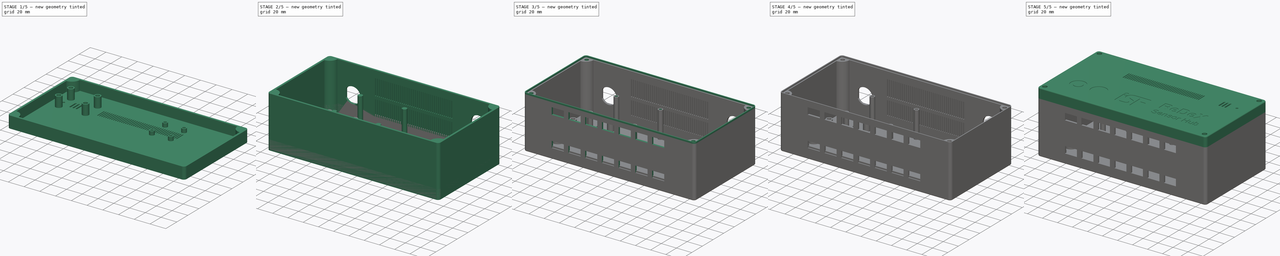
[diagram: build sequence overview — one tinted view per stage of 5, left to right]
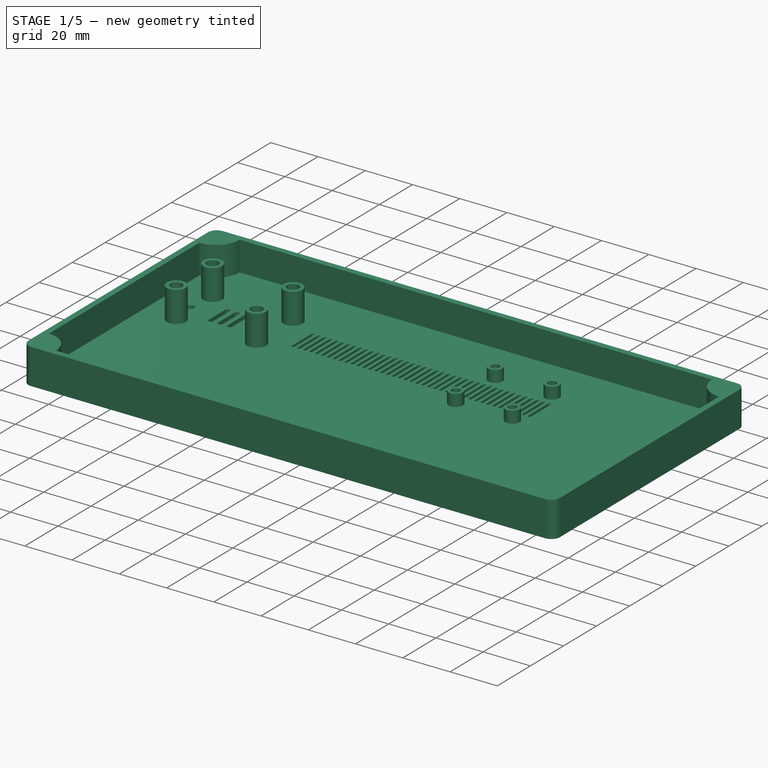
[diagram: stage 1 of 5 — iso view after this stage's code; geometry added in this stage tinted green]
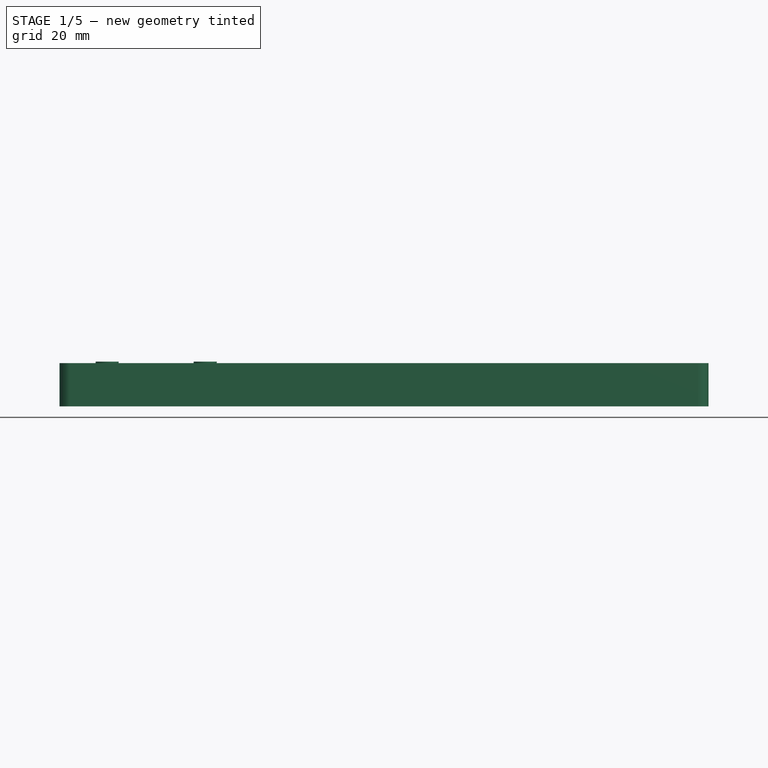
[diagram: stage 1 of 5 — front view after this stage's code; geometry added in this stage tinted green]
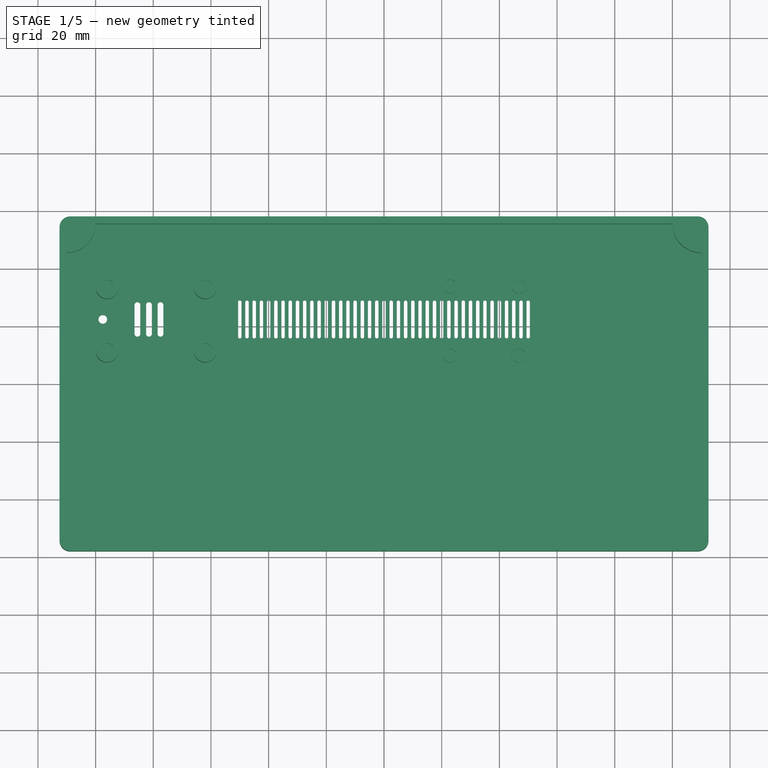
[diagram: stage 1 of 5 — top view after this stage's code; geometry added in this stage tinted green]
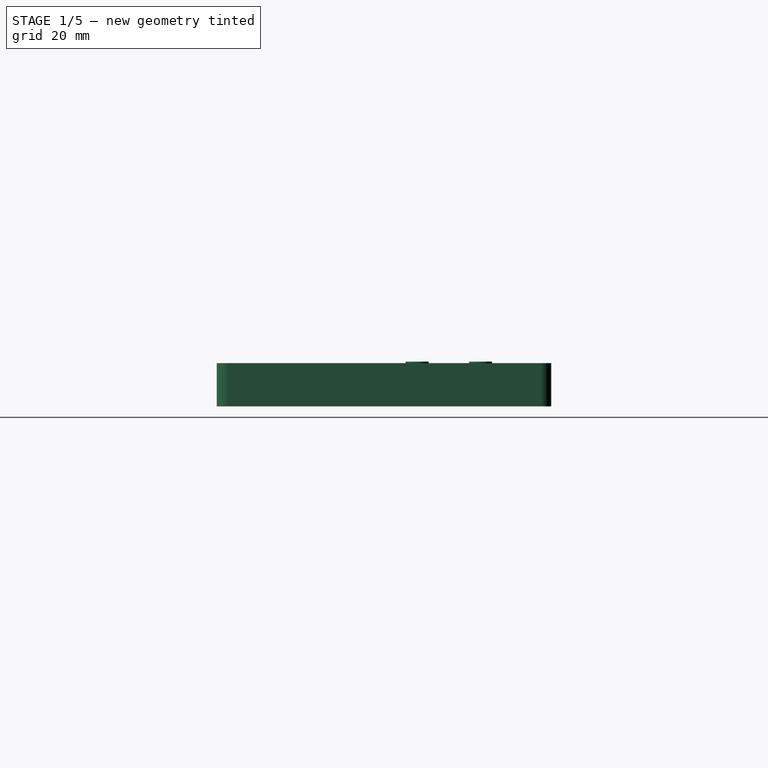
[diagram: stage 1 of 5 — right view after this stage's code; geometry added in this stage tinted green]
FCSTD DOCUMENT  (FreeCAD 0.21R33771 (Git))
Label: Hub
License: Creative Commons Attribution-ShareAlike 4.0
LicenseURL: https://creativecommons.org/licenses/by-sa/4.0/
objects: Sketcher::SketchObject×24, PartDesign::Pocket×14, PartDesign::Pad×10, Part::Extrusion×7, Part::Feature×5, PartDesign::LinearPattern×4, Part::MultiFuse×4, PartDesign::Body×3, Part::Cut×3, Part::Part2DObjectPython×2, PartDesign::Fillet×2, Spreadsheet::Sheet×1, PartDesign::MultiTransform×1, Part::FeaturePython×1, Part::Mirroring×1
note: 106 computed .brp shape members not serialized (recipe doc carries the construction recipe); baked Part::Feature solids carry a one-line shape summary decoded from their .brp

FEATURE [Sketcher::SketchObject] Sketch010
  FullyConstrained = true
  MapMode = 5
  Support = -> [XY_Plane001]
  expr: Constraints[12] = Spreadsheet.HousingRoundingRadius + Spreadsheet.WallThickness
  expr: Constraints[16] = Spreadsheet.HousingDepth + 2 * Spreadsheet.WallThickness
  expr: Constraints[17] = Spreadsheet.HousingWidth + 2 * Spreadsheet.WallThickness
  sketch-geometry (8):
    g0: LineSegment StartX=-108.8 StartY=58 StartZ=0 EndX=108.8 EndY=58 EndZ=0
    g1: LineSegment StartX=112.5 StartY=54.3 StartZ=0 EndX=112.5 EndY=-54.3 EndZ=0
    g2: LineSegment StartX=108.8 StartY=-58 StartZ=0 EndX=-108.8 EndY=-58 EndZ=0
    g3: LineSegment StartX=-112.5 StartY=-54.3 StartZ=0 EndX=-112.5 EndY=54.3 EndZ=0
    g4: ArcOfCircle CenterX=-108.8 CenterY=54.3 CenterZ=0 NormalX=0 NormalY=0 NormalZ=1 AngleXU=0 Radius=3.7 StartAngle=1.5708 EndAngle=3.14159
    g5: ArcOfCircle CenterX=108.8 CenterY=54.3 CenterZ=0 NormalX=0 NormalY=0 NormalZ=1 AngleXU=0 Radius=3.7 StartAngle=7e-16 EndAngle=1.5708
    g6: ArcOfCircle CenterX=108.8 CenterY=-54.3 CenterZ=0 NormalX=0 NormalY=0 NormalZ=1 AngleXU=0 Radius=3.7 StartAngle=4.71239 EndAngle=6.28319
    g7: ArcOfCircle CenterX=-108.8 CenterY=-54.3 CenterZ=0 NormalX=0 NormalY=0 NormalZ=1 AngleXU=0 Radius=3.7 StartAngle=3.14159 EndAngle=4.71239
  constraints (19):
    c: Horizontal(g0)
    c: Horizontal(g2)
    c: Vertical(g1)
    c: Vertical(g3)
    c: Tangent(g0,g4) = 1.5708
    c: Tangent(g3,g4) = 1.5708
    c: Tangent(g0,g5) = 1.5708
    c: Tangent(g1,g5) = 1.5708
    c: Tangent(g1,g6) = 1.5708
    c: Tangent(g2,g6) = 1.5708
    c: Tangent(g2,g7) = 1.5708
    c: Tangent(g3,g7) = 1.5708
    c: Radius(g4) = 3.7
    c: Equal(g5,g4)
    c: Equal(g6,g4)
    c: Equal(g7,g4)
    c: DistanceY(g2,g0) = 116
    c: DistanceX(g3,g1) = 225
    c: Symmetric(g5,g7,g-1)
FEATURE [PartDesign::Pad] Pad003  label="HousingTopOuterPad"
  Direction = (0,0,1)
  Length = 15
  Length2 = 10
  Profile = -> Sketch010
  ReferenceAxis = -> Sketch010 [N_Axis]
  Type = 0
  expr: Length = Spreadsheet.HousingTopHeight
FEATURE [Sketcher::SketchObject] Sketch011  label="HousingTopInnerSketch"
  FullyConstrained = true
  MapMode = 5
  Placement = pos=(0,0,15) rot=(0,0,1;0rad)
  Support = -> [Pad003]
  expr: Constraints[12] = Spreadsheet.HousingMountRadius
  expr: Constraints[24] = Spreadsheet.HousingWidth
  expr: Constraints[25] = Spreadsheet.HousingDepth
  sketch-geometry (8):
    g0: LineSegment StartX=-100 StartY=55.5 StartZ=0 EndX=100 EndY=55.5 EndZ=0
    g1: LineSegment StartX=110 StartY=45.5 StartZ=0 EndX=110 EndY=-45.5 EndZ=0
    g2: LineSegment StartX=100 StartY=-55.5 StartZ=0 EndX=-100 EndY=-55.5 EndZ=0
    g3: LineSegment StartX=-110 StartY=-45.5 StartZ=0 EndX=-110 EndY=45.5 EndZ=0
    g4: ArcOfCircle CenterX=-110 CenterY=55.5 CenterZ=0 NormalX=0 NormalY=0 NormalZ=1 AngleXU=0 Radius=10 StartAngle=4.71239 EndAngle=6.28319
    g5: ArcOfCircle CenterX=110 CenterY=55.5 CenterZ=0 NormalX=0 NormalY=0 NormalZ=1 AngleXU=0 Radius=10 StartAngle=3.14159 EndAngle=4.71239
    g6: ArcOfCircle CenterX=110 CenterY=-55.5 CenterZ=0 NormalX=0 NormalY=0 NormalZ=1 AngleXU=0 Radius=10 StartAngle=1.5708 EndAngle=3.14159
    g7: ArcOfCircle CenterX=-110 CenterY=-55.5 CenterZ=0 NormalX=0 NormalY=0 NormalZ=1 AngleXU=0 Radius=10 StartAngle=0 EndAngle=1.5708
  constraints (27):
    c: Horizontal(g0)
    c: Horizontal(g2)
    c: Vertical(g1)
    c: Vertical(g3)
    c: Coincident(g4,g0)
    c: Coincident(g4,g3)
    c: Coincident(g5,g0)
    c: Coincident(g5,g1)
    c: Coincident(g6,g1)
    c: Coincident(g6,g2)
    c: Coincident(g7,g2)
    c: Coincident(g7,g3)
    c: Radius(g4) = 10
    c: Equal(g5,g4)
    c: Equal(g6,g4)
    c: Equal(g7,g4)
    c: Horizontal(g0,g5)
    c: Horizontal(g2,g6)
    c: Horizontal(g2,g7)
    c: Horizontal(g0,g4)
    c: Vertical(g1,g5)
    c: Vertical(g1,g6)
    c: Vertical(g3,g7)
    c: Vertical(g3,g4)
    c: DistanceX(g4,g5) = 220
    c: DistanceY(g6,g5) = 111
    c: Symmetric(g5,g7,g-1)
FEATURE [PartDesign::Pocket] Pocket007  label="HousingTopInnerPocket"
  BaseFeature = -> Pad003
  Direction = (0,0,-1)
  Length = 12.5
  Length2 = 5
  Profile = -> Sketch011
  ReferenceAxis = -> Sketch011 [N_Axis]
  Type = 0
  expr: Length = Spreadsheet.HousingTopHeight - Spreadsheet.WallThickness
FEATURE [Sketcher::SketchObject] Sketch012  label="FanMountSketch"
  FullyConstrained = true
  MapMode = 5
  Placement = pos=(0,0,2.5) rot=(0,0,1;0rad)
  Support = -> [Pocket007]
  expr: Constraints[0] = Spreadsheet.PiMountholeCenterY
  expr: Constraints[10] = Spreadsheet.FanMountholeDistance
  expr: Constraints[11] = Spreadsheet.FanMountholeDistance
  expr: Constraints[12] = Spreadsheet.PiMountholeCenterX
  expr: Constraints[1] = Spreadsheet.FanMountholeDiameter
  sketch-geometry (5):
    g0: GeomPoint X=35 Y=22.5 Z=0
    g1: Circle CenterX=23 CenterY=34.5 CenterZ=0 NormalX=0 NormalY=0 NormalZ=1 AngleXU=0 Radius=3
    g2: Circle CenterX=47 CenterY=34.5 CenterZ=0 NormalX=0 NormalY=0 NormalZ=1 AngleXU=0 Radius=3
    g3: Circle CenterX=47 CenterY=10.5 CenterZ=0 NormalX=0 NormalY=0 NormalZ=1 AngleXU=0 Radius=3
    g4: Circle CenterX=23 CenterY=10.5 CenterZ=0 NormalX=0 NormalY=0 NormalZ=1 AngleXU=0 Radius=3
  constraints (13):
    c: DistanceY(g-1,g0) = 22.5
    c: Diameter(g1) = 6
    c: Equal(g2,g1)
    c: Equal(g3,g1)
    c: Equal(g4,g1)
    c: Horizontal(g1,g2)
    c: Horizontal(g4,g3)
    c: Vertical(g2,g3)
    c: Vertical(g1,g4)
    c: Symmetric(g2,g4,g0)
    c: DistanceX(g1,g2) = 24
    c: DistanceY(g3,g2) = 24
    c: DistanceX(g-1,g0) = 35
FEATURE [PartDesign::Pad] Pad004  label="FanMountPad"
  BaseFeature = -> Pocket007
  Direction = (0,0,1)
  Length = 5
  Length2 = 10
  Profile = -> Sketch012
  ReferenceAxis = -> Sketch012 [N_Axis]
  Type = 0
  expr: Length = Spreadsheet.FanMountHeight
FEATURE [Sketcher::SketchObject] Sketch013  label="FanMountholeSketch"
  FullyConstrained = true
  MapMode = 5
  Placement = pos=(0,0,7.5) rot=(0,0,1;0rad)
  Support = -> [Pad004]
  expr: Constraints[0] = Spreadsheet.FanMountholeDrill
  expr: Constraints[10] = Spreadsheet.FanMountholeDistance
  expr: Constraints[11] = Spreadsheet.FanMountholeDistance
  expr: Constraints[12] = Spreadsheet.PiMountholeCenterX
  expr: Constraints[8] = Spreadsheet.PiMountholeCenterY
  sketch-geometry (5):
    g0: Circle CenterX=23 CenterY=34.5 CenterZ=0 NormalX=0 NormalY=0 NormalZ=1 AngleXU=0 Radius=1.75
    g1: Circle CenterX=47 CenterY=34.5 CenterZ=0 NormalX=0 NormalY=0 NormalZ=1 AngleXU=0 Radius=1.75
    g2: Circle CenterX=47 CenterY=10.5 CenterZ=0 NormalX=0 NormalY=0 NormalZ=1 AngleXU=0 Radius=1.75
    g3: Circle CenterX=23 CenterY=10.5 CenterZ=0 NormalX=0 NormalY=0 NormalZ=1 AngleXU=0 Radius=1.75
    g4: GeomPoint X=35 Y=22.5 Z=0
  constraints (13):
    c: Diameter(g0) = 3.5
    c: Equal(g1,g0)
    c: Equal(g2,g0)
    c: Equal(g3,g0)
    c: Horizontal(g1,g0)
    c: Horizontal(g2,g3)
    c: Vertical(g1,g2)
    c: Vertical(g0,g3)
    c: DistanceY(g-1,g4) = 22.5
    c: Symmetric(g1,g3,g4)
    c: DistanceX(g0,g1) = 24
    c: DistanceY(g2,g1) = 24
    c: DistanceX(g-1,g4) = 35
FEATURE [PartDesign::Pocket] Pocket008  label="FanMountholePocket"
  BaseFeature = -> Pad004
  Direction = (0,0,-1)
  Length = 5
  Length2 = 5
  Profile = -> Sketch013
  ReferenceAxis = -> Sketch013 [N_Axis]
  Type = 0
  expr: Length = Spreadsheet.FanMountHeight
FEATURE [Sketcher::SketchObject] Sketch014  label="TopVentilationSketch"
  FullyConstrained = true
  MapMode = 5
  Placement = pos=(0,0,2.5) rot=(0,0,1;0rad)
  Support = -> [Pocket008]
  expr: Constraints[6] = Spreadsheet.VentilationWidth
  expr: Constraints[8] = Spreadsheet.FanMountholeDistance / 2
  expr: Constraints[9] = Spreadsheet.PiMountholeCenterY
  sketch-geometry (5):
    g0: ArcOfCircle CenterX=-50 CenterY=28.5 CenterZ=0 NormalX=0 NormalY=0 NormalZ=1 AngleXU=0 Radius=0.6 StartAngle=-9e-16 EndAngle=3.14159
    g1: ArcOfCircle CenterX=-50 CenterY=16.5 CenterZ=0 NormalX=0 NormalY=0 NormalZ=1 AngleXU=0 Radius=0.6 StartAngle=3.14159 EndAngle=6.28319
    g2: LineSegment StartX=-50.6 StartY=28.5 StartZ=0 EndX=-50.6 EndY=16.5 EndZ=0
    g3: LineSegment StartX=-49.4 StartY=16.5 StartZ=0 EndX=-49.4 EndY=28.5 EndZ=0
    g4: GeomPoint X=-50 Y=22.5 Z=0
  constraints (11):
    c: Tangent(g0,g2) = -1.5708
    c: Tangent(g2,g1) = -1.5708
    c: Tangent(g1,g3) = -1.5708
    c: Tangent(g3,g0) = -1.5708
    c: Equal(g0,g1)
    c: Vertical(g2)
    c: DistanceX(g0,g0) = 1.2
    c: Symmetric(g0,g1,g4)
    c: DistanceY(g1,g0) = 12
    c: DistanceY(g-1,g4) = 22.5
    c: DistanceX(g4,g-1) = 50
FEATURE [PartDesign::Pocket] Pocket009  label="TopVentilationPocket"
  BaseFeature = -> Pocket008
  Direction = (0,0,-1)
  Length = 2.5
  Length2 = 5
  Profile = -> Sketch014
  ReferenceAxis = -> Sketch014 [N_Axis]
  Type = 0
  expr: Length = Spreadsheet.WallThickness
FEATURE [PartDesign::LinearPattern] LinearPattern003  label="TopVentilationPattern"
  BaseFeature = -> Pocket009
  Direction = -> Sketch014 [H_Axis]
  Length = 100
  Occurrences = 41
  Originals = -> [Pocket009]
FEATURE [Sketcher::SketchObject] Sketch017  label="AlarmMountSketch"
  FullyConstrained = true
  MapMode = 5
  Placement = pos=(0,0,2.5) rot=(0,0,1;0rad)
  Support = -> [LinearPattern003]
  expr: Constraints[0] = Spreadsheet.AlarmCenterY
  expr: Constraints[10] = Spreadsheet.AlarmMountholeXDistance
  expr: Constraints[11] = Spreadsheet.AlarmMountholeYDistance
  expr: Constraints[12] = Spreadsheet.AlarmCenterX
  expr: Constraints[1] = Spreadsheet.AlarmMountholeDiameter
  sketch-geometry (5):
    g0: GeomPoint X=-79 Y=22.5 Z=0
    g1: Circle CenterX=-96 CenterY=33.5 CenterZ=0 NormalX=0 NormalY=0 NormalZ=1 AngleXU=0 Radius=4
    g2: Circle CenterX=-62 CenterY=33.5 CenterZ=0 NormalX=0 NormalY=0 NormalZ=1 AngleXU=0 Radius=4
    g3: Circle CenterX=-62 CenterY=11.5 CenterZ=0 NormalX=0 NormalY=0 NormalZ=1 AngleXU=0 Radius=4
    g4: Circle CenterX=-96 CenterY=11.5 CenterZ=0 NormalX=0 NormalY=0 NormalZ=1 AngleXU=0 Radius=4
  constraints (13):
    c: DistanceY(g-1,g0) = 22.5
    c: Diameter(g1) = 8
    c: Equal(g2,g1)
    c: Equal(g3,g1)
    c: Equal(g4,g1)
    c: Horizontal(g2,g1)
    c: Horizontal(g3,g4)
    c: Vertical(g2,g3)
    c: Vertical(g1,g4)
    c: Symmetric(g2,g4,g0)
    c: DistanceX(g1,g2) = 34
    c: DistanceY(g3,g2) = 22
    c: DistanceX(g0,g-1) = 79
FEATURE [PartDesign::Pad] Pad006  label="AlarmMountPad"
  BaseFeature = -> LinearPattern003
  Direction = (0,0,1)
  Length = 13
  Length2 = 10
  Profile = -> Sketch017
  ReferenceAxis = -> Sketch017 [N_Axis]
  Type = 0
  expr: Length = Spreadsheet.AlarmMountHeight
FEATURE [Sketcher::SketchObject] Sketch018  label="AlarmMountholeSketch"
  FullyConstrained = true
  MapMode = 5
  Placement = pos=(0,0,15.5) rot=(0,0,1;0rad)
  Support = -> [Pad006]
  expr: Constraints[0] = Spreadsheet.AlarmCenterY
  expr: Constraints[10] = Spreadsheet.AlarmMountholeXDistance
  expr: Constraints[11] = Spreadsheet.AlarmMountholeYDistance
  expr: Constraints[12] = Spreadsheet.AlarmCenterX
  expr: Constraints[1] = Spreadsheet.AlarmMountholeDrill
  sketch-geometry (5):
    g0: GeomPoint X=-79 Y=22.5 Z=0
    g1: Circle CenterX=-96 CenterY=33.5 CenterZ=0 NormalX=0 NormalY=0 NormalZ=1 AngleXU=0 Radius=2.5
    g2: Circle CenterX=-62 CenterY=33.5 CenterZ=0 NormalX=0 NormalY=0 NormalZ=1 AngleXU=0 Radius=2.5
    g3: Circle CenterX=-62 CenterY=11.5 CenterZ=0 NormalX=0 NormalY=0 NormalZ=1 AngleXU=0 Radius=2.5
    g4: Circle CenterX=-96 CenterY=11.5 CenterZ=0 NormalX=0 NormalY=0 NormalZ=1 AngleXU=0 Radius=2.5
  constraints (13):
    c: DistanceY(g-1,g0) = 22.5
    c: Diameter(g1) = 5
    c: Equal(g2,g1)
    c: Equal(g3,g1)
    c: Equal(g4,g1)
    c: Horizontal(g2,g1)
    c: Horizontal(g3,g4)
    c: Vertical(g2,g3)
    c: Vertical(g1,g4)
    c: Symmetric(g2,g4,g0)
    c: DistanceX(g1,g2) = 34
    c: DistanceY(g3,g2) = 22
    c: DistanceX(g0,g-1) = 79
FEATURE [PartDesign::Pocket] Pocket011  label="AlarmMountholePocket"
  BaseFeature = -> Pad006
  Direction = (0,0,-1)
  Length = 5
  Length2 = 5
  Profile = -> Sketch018
  ReferenceAxis = -> Sketch018 [N_Axis]
  Type = 0
  expr: Length = Spreadsheet.AlarmMountholeHeight
FEATURE [Sketcher::SketchObject] Sketch019  label="AlarmCutoutSketch"
  FullyConstrained = true
  MapMode = 5
  Placement = pos=(0,0,2.5) rot=(0,0,1;0rad)
  Support = -> [Pocket011]
  expr: Constraints[0] = Spreadsheet.AlarmCenterY
  expr: Constraints[32] = Spreadsheet.AlarmLedDrill
  expr: Constraints[33] = Spreadsheet.AlarmCenterY
  expr: Constraints[34] = Spreadsheet.AlarmSpeakerOffset
  expr: Constraints[35] = Spreadsheet.AlarmCenterX + Spreadsheet.AlarmSpeakerOffset
  expr: Constraints[36] = Spreadsheet.AlarmLedOffset - Spreadsheet.AlarmSpeakerOffset
  expr: Constraints[9] = 10
  sketch-geometry (17):
    g0: GeomPoint X=-81.5 Y=22.5 Z=0
    g1: ArcOfCircle CenterX=-81.5 CenterY=27.5 CenterZ=0 NormalX=0 NormalY=0 NormalZ=1 AngleXU=0 Radius=1 StartAngle=2e-16 EndAngle=3.14159
    g2: ArcOfCircle CenterX=-81.5 CenterY=17.5 CenterZ=0 NormalX=0 NormalY=0 NormalZ=1 AngleXU=0 Radius=1 StartAngle=3.14159 EndAngle=6.28319
    g3: LineSegment StartX=-82.5 StartY=27.5 StartZ=0 EndX=-82.5 EndY=17.5 EndZ=0
    g4: LineSegment StartX=-80.5 StartY=17.5 StartZ=0 EndX=-80.5 EndY=27.5 EndZ=0
    g5: GeomPoint X=-77.5 Y=22.5 Z=0
    g6: ArcOfCircle CenterX=-77.5 CenterY=27.5 CenterZ=0 NormalX=0 NormalY=0 NormalZ=1 AngleXU=0 Radius=1 StartAngle=4e-16 EndAngle=3.14159
    g7: ArcOfCircle CenterX=-77.5 CenterY=17.5 CenterZ=0 NormalX=0 NormalY=0 NormalZ=1 AngleXU=0 Radius=1 StartAngle=3.14159 EndAngle=6.28319
    g8: LineSegment StartX=-78.5 StartY=27.5 StartZ=0 EndX=-78.5 EndY=17.5 EndZ=0
    g9: LineSegment StartX=-76.5 StartY=17.5 StartZ=0 EndX=-76.5 EndY=27.5 EndZ=0
    g10: GeomPoint X=-85.5 Y=22.5 Z=0
    g11: ArcOfCircle CenterX=-85.5 CenterY=27.5 CenterZ=0 NormalX=0 NormalY=0 NormalZ=1 AngleXU=0 Radius=1 StartAngle=1e-15 EndAngle=3.14159
    g12: ArcOfCircle CenterX=-85.5 CenterY=17.5 CenterZ=0 NormalX=0 NormalY=0 NormalZ=1 AngleXU=0 Radius=1 StartAngle=3.14159 EndAngle=6.28319
    g13: LineSegment StartX=-86.5 StartY=27.5 StartZ=0 EndX=-86.5 EndY=17.5 EndZ=0
    g14: LineSegment StartX=-84.5 StartY=17.5 StartZ=0 EndX=-84.5 EndY=27.5 EndZ=0
    g15: Circle CenterX=-97.5 CenterY=22.5 CenterZ=0 NormalX=0 NormalY=0 NormalZ=1 AngleXU=0 Radius=1.5
    g16: GeomPoint X=-79 Y=22.5 Z=0
  constraints (37):
    c: DistanceY(g-1,g0) = 22.5
    c: Tangent(g1,g3) = -1.5708
    c: Tangent(g3,g2) = -1.5708
    c: Tangent(g2,g4) = -1.5708
    c: Tangent(g4,g1) = -1.5708
    c: Equal(g1,g2)
    c: Vertical(g3)
    c: DistanceX(g2,g2) = 2
    c: Symmetric(g1,g2,g0)
    c: DistanceY(g2,g1) = 10
    c: Tangent(g6,g8) = -1.5708
    c: Tangent(g8,g7) = -1.5708
    c: Tangent(g7,g9) = -1.5708
    c: Tangent(g9,g6) = -1.5708
    c: Equal(g6,g7)
    c: Vertical(g8)
    c: Equal(g2,g7) = 2
    c: Symmetric(g6,g7,g5)
    c: DistanceY(g7,g6) = 10
    c: Tangent(g11,g13) = -1.5708
    c: Tangent(g13,g12) = -1.5708
    c: Tangent(g12,g14) = -1.5708
    c: Tangent(g14,g11) = -1.5708
    c: Equal(g11,g12)
    c: Vertical(g13)
    c: Equal(g2,g12) = 2
    c: Symmetric(g11,g12,g10)
    c: DistanceY(g12,g11) = 10
    c: Horizontal(g10,g0)
    c: Symmetric(g5,g10,g0)
    c: DistanceX(g0,g5) = 4
    c: Horizontal(g15,g0)
    c: Diameter(g15) = 3
    c: DistanceY(g-1,g16) = 22.5
    c: DistanceX(g0,g16) = 2.5
    c: DistanceX(g0,g-1) = 81.5
    c: DistanceX(g15,g0) = 16
FEATURE [PartDesign::Pocket] Pocket012  label="AlarmCutoutPocket"
  BaseFeature = -> Pocket011
  Direction = (0,0,-1)
  Length = 2.5
  Length2 = 5
  Profile = -> Sketch019
  ReferenceAxis = -> Sketch019 [N_Axis]
  Type = 0
  expr: Length = Spreadsheet.WallThickness
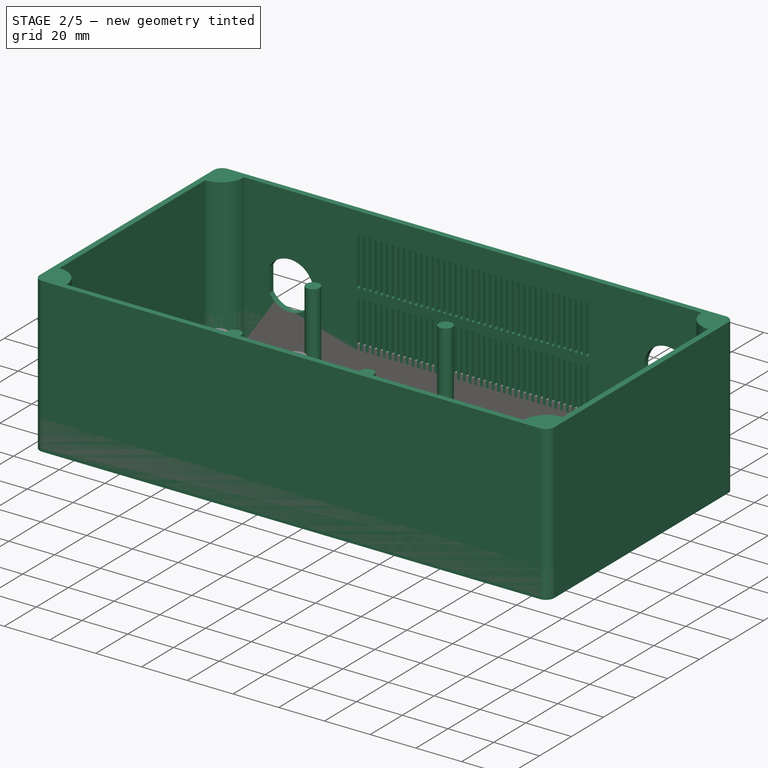
[diagram: stage 2 of 5 — iso view after this stage's code; geometry added in this stage tinted green]
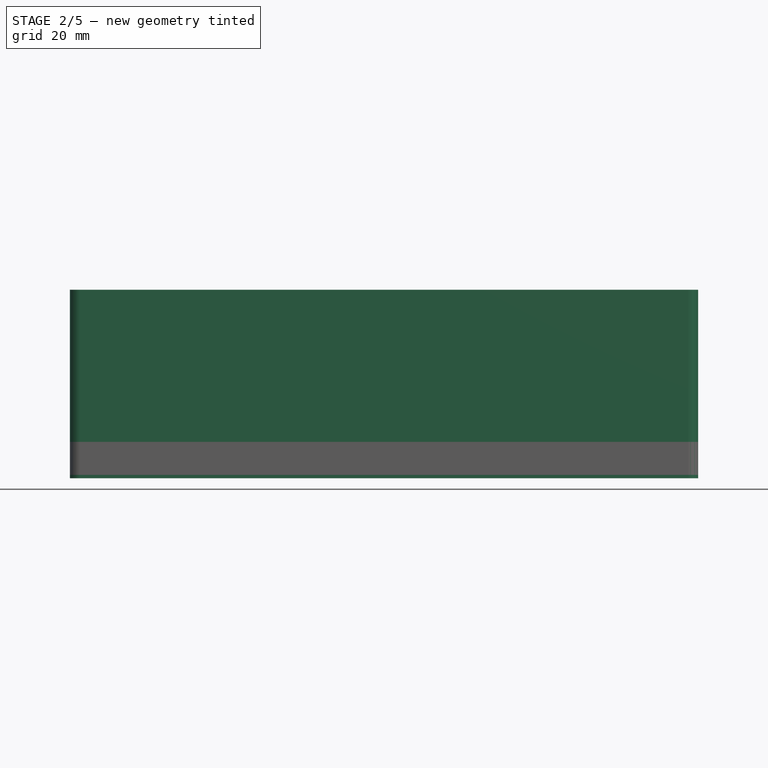
[diagram: stage 2 of 5 — front view after this stage's code; geometry added in this stage tinted green]
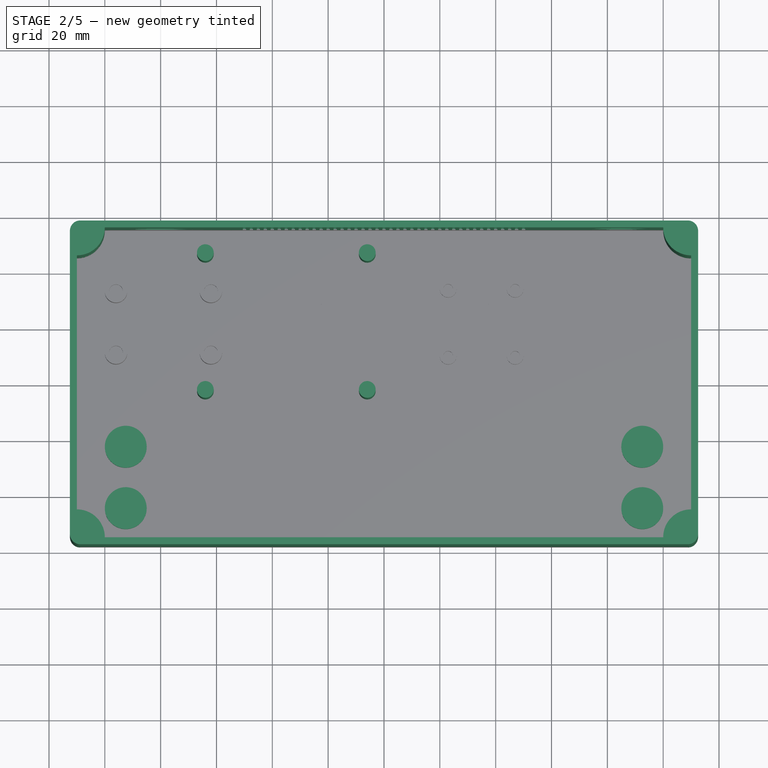
[diagram: stage 2 of 5 — top view after this stage's code; geometry added in this stage tinted green]
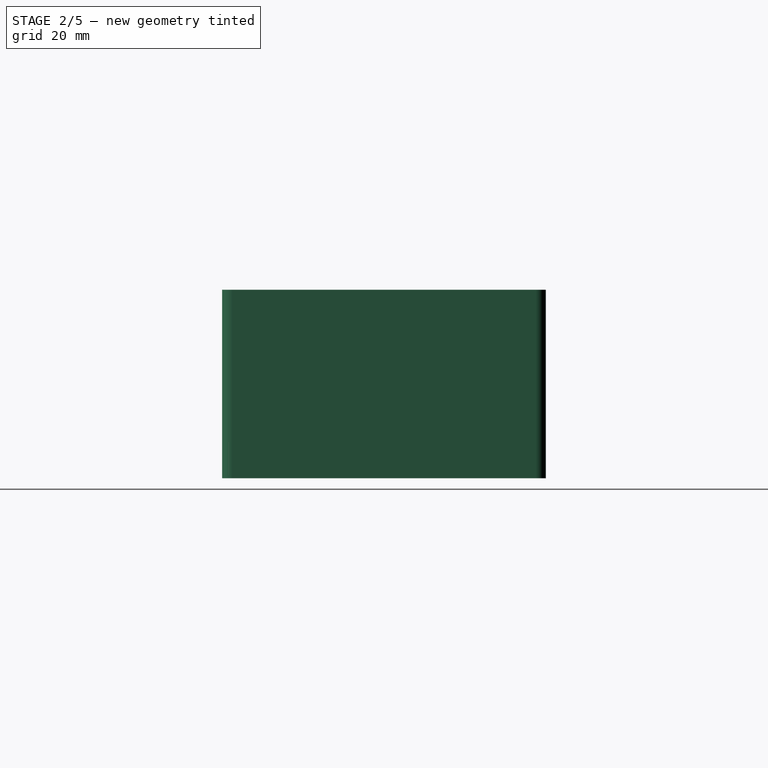
[diagram: stage 2 of 5 — right view after this stage's code; geometry added in this stage tinted green]
FEATURE [Spreadsheet::Sheet] Spreadsheet
  cells = A1='Pi Width; B1(PiWidth)=85; A2='Pi Depth; B2(PiDepth)=56; A3='Pi Mounthole Center X; B3(PiMountholeCenterX)=35; A4='Pi Mounthole Center Y; B4(PiMountholeCenterY)==HousingDepth / 2 - PiDepth / 2 - PiMountMargin; A5='Pi Mounthole X Distance; B5(PiMountholeXDistance)=58; A6='Pi Mounthole Y Distance; B6(PiMountholeYDistance)=49; A7='Pi Mounthole Drill; B7(PiMountholeDrill)=3.5; A8='Pi Mounthole Diameter; B8(PiMountholeDiameter)=6; A9='Pi Mounthole Offset; B9(PiMountholeOffset)=3.5; A10='Pi Mount Height; B10(PiMountHeight)==HubHeight + HubMountHeight; A11='Pi Mounthole Height; B11(PiMountholeHeight)=5; A12='Pi Mount Margin; B12(PiMountMargin)=5; A14='Hub Width; B14(HubWidth)=200; A15='Hub Depth; B15(HubDepth)=45; A16='Hub Height; B16(HubHeight)=30; A17='Hub Mounthole X Distance; B17(HubMountholeXDistance)=185; A18='Hub Mounthole Y Distance; B18(HubMountholeYDistance)=22; A19='Hub Mounthole Drill; B19(HubMountholeDrill)=5; A20='Hub Mounthole Diameter; B20(HubMountholeDiameter)=15; A21='Hub Mount Height; B21(HubMountHeight)=5; A22='Hub Mount Gap; B22(HubMountGap)=10; A24='Fan Size; B24(FanSize)=30; A25='Fan Height; B25(FanHeight)=7; A26='Fan Mounthole Distance; B26(FanMountholeDistance)=24; A27='Fan Mounthole Drill; B27(FanMountholeDrill)=3.5; A28='Fan Mounthole Diameter; B28(FanMountholeDiameter)=6; A29='Fan Mount Height; B29(FanMountHeight)=5; A31='Alarm Width; B31(AlarmWidth)=42; A32='Alarm Depth; B32(AlarmDepth)=30; A33='Alarm Center X; B33(AlarmCenterX)==HousingWidth / 2 - 10 - AlarmWidth / 2; A34='Alarm Center Y; B34(AlarmCenterY)==PiMountholeCenterY; A35='Alarm Mounthole X Distance; B35(AlarmMountholeXDistance)=34; A36='Alarm Mounthole Y Distance; B36(AlarmMountholeYDistance)=22; A37='Alarm Mounthole Drill; B37(AlarmMountholeDrill)=5; A38='Alarm Mounthole Height; B38(AlarmMountholeHeight)=5; A39='Alarm Mounthole Diameter; B39(AlarmMountholeDiameter)=8; A40='Alarm Mount Height; B40(AlarmMountHeight)=13; A41='Alarm LED Drill; B41(AlarmLedDrill)=3; A42='Alarm LED Offset; B42(AlarmLedOffset)=18.5; A43='Alarm LED Height; B43(AlarmLedHeight)=15; A44='Alarm Speaker Offset; B44(AlarmSpeakerOffset)=2.5; A46='Switch Diameter; B46(SwitchDiameter)=20.2; A47='Jack Diameter; B47(JackDiameter)=11; A48='Jack X Offset; B48(JackXOffset)=25; A49='Jack Y Offset; B49(JackYOffset)=15; A51='Ethernet Diameter; B51(EthernetDiameter)=20.8; A52='Ethernet Width; B52(EthernetWidth)=19.4; A53='Ethernet X Offset; B53(EthernetXOffset)=30; A54='Ethernet Y Offset; B54(EthernetYOffset)=30; A56='Wall Thickness; B56(WallThickness)=2.5; A58='Housing Width; B58(HousingWidth)==HubMountholeXDistance + HubMountholeDiameter + 2 * HousingMountRadius; A59='Housing Depth; B59(HousingDepth)==HubDepth + PiDepth + 2 * PiMountMargin; A60='Housing Height; B60(HousingHeight)==2 * HubHeight + HubMountGap + 2 * HubMountHeight; A61='Housing Top Height; B61(HousingTopHeight)=15; A62='Housing Bottom Height; B62(HousingBottomHeight)==HousingHeight - HousingTopHeight; A63='Housing Rounding Radius; B63(HousingRoundingRadius)=1.2; A64='Housing Mount Offset; B64(HousingMountOffset)==sqrt(WallThickness ^ 2 + WallThickness ^ 2); A65='Housing Mount Radius; B65(HousingMountRadius)=10; A66='Housing Mount Drill; B66(HousingMountDrill)=5; A67='Housing Mount Height; B67(HousingMountHeight)=5; A69='USB Width; B69(UsbWidth)=16; A70='USB Height; B70(UsbHeight)=9; A71='USB X Offset; B71(UsbXOffset)=75.5; A72='USB Y Offset; B72(UsbYOffset)==HubMountHeight + 5; A73='USB X Distance; B73(UsbXDistance)=22; A74='USB Y Distance; B74(UsbYDistance)==HubHeight + HubMountGap; A76='Ventilation Width; B76(VentilationWidth)=1.2; A77='Ventilation Height; B77(VentilationHeight)=20; A78='Ventilation Distance; B78(VentilationDistance)=5; A80='AUX Center X; B80(AuxCenterX)=60; A81='AUX Center Y; B81(AuxCenterY)==PiMountholeCenterY; A82='AUX Mount Distance; B82(AuxMountDistance)=33; A83='AUX Mount Diameter; B83(AuxMountDiameter)=8; A84='AUX Mount Drill; B84(AuxMountDrill)=5; A85='AUX Mount Height; B85(AuxMountHeight)=5
FEATURE [Sketcher::SketchObject] Sketch  label="HousingOuterSketch"
  FullyConstrained = true
  MapMode = 5
  Support = -> [XY_Plane]
  expr: Constraints[12] = Spreadsheet.HousingRoundingRadius + Spreadsheet.WallThickness
  expr: Constraints[16] = Spreadsheet.HousingWidth + 2 * Spreadsheet.WallThickness
  expr: Constraints[17] = Spreadsheet.HousingDepth + 2 * Spreadsheet.WallThickness
  sketch-geometry (8):
    g0: LineSegment StartX=-108.8 StartY=58 StartZ=0 EndX=108.8 EndY=58 EndZ=0
    g1: LineSegment StartX=112.5 StartY=54.3 StartZ=0 EndX=112.5 EndY=-54.3 EndZ=0
    g2: LineSegment StartX=108.8 StartY=-58 StartZ=0 EndX=-108.8 EndY=-58 EndZ=0
    g3: LineSegment StartX=-112.5 StartY=-54.3 StartZ=0 EndX=-112.5 EndY=54.3 EndZ=0
    g4: ArcOfCircle CenterX=-108.8 CenterY=54.3 CenterZ=0 NormalX=0 NormalY=0 NormalZ=1 AngleXU=0 Radius=3.7 StartAngle=1.5708 EndAngle=3.14159
    g5: ArcOfCircle CenterX=108.8 CenterY=54.3 CenterZ=0 NormalX=0 NormalY=0 NormalZ=1 AngleXU=0 Radius=3.7 StartAngle=0 EndAngle=1.5708
    g6: ArcOfCircle CenterX=108.8 CenterY=-54.3 CenterZ=0 NormalX=0 NormalY=0 NormalZ=1 AngleXU=0 Radius=3.7 StartAngle=4.71239 EndAngle=6.28319
    g7: ArcOfCircle CenterX=-108.8 CenterY=-54.3 CenterZ=0 NormalX=0 NormalY=0 NormalZ=1 AngleXU=0 Radius=3.7 StartAngle=3.14159 EndAngle=4.71239
  constraints (19):
    c: Horizontal(g0)
    c: Horizontal(g2)
    c: Vertical(g1)
    c: Vertical(g3)
    c: Tangent(g0,g4) = 1.5708
    c: Tangent(g3,g4) = 1.5708
    c: Tangent(g0,g5) = 1.5708
    c: Tangent(g1,g5) = 1.5708
    c: Tangent(g1,g6) = 1.5708
    c: Tangent(g2,g6) = 1.5708
    c: Tangent(g2,g7) = 1.5708
    c: Tangent(g3,g7) = 1.5708
    c: Radius(g4) = 3.7
    c: Equal(g5,g4)
    c: Equal(g6,g4)
    c: Equal(g7,g4)
    c: DistanceX(g3,g1) = 225
    c: DistanceY(g2,g0) = 116
    c: Symmetric(g5,g7,g-1)
FEATURE [PartDesign::Pad] Pad  label="HousingOuterPad"
  Direction = (0,0,1)
  Length = 67.5
  Length2 = 10
  Profile = -> Sketch
  Type = 0
  expr: Length = Spreadsheet.HousingBottomHeight + Spreadsheet.WallThickness
FEATURE [Sketcher::SketchObject] Sketch001  label="HousingInnerSketch"
  FullyConstrained = true
  MapMode = 5
  Placement = pos=(0,0,67.5) rot=(0,0,1;0rad)
  Support = -> [Pad]
  expr: Constraints[12] = Spreadsheet.HousingMountRadius
  expr: Constraints[24] = Spreadsheet.HousingWidth
  expr: Constraints[25] = Spreadsheet.HousingDepth
  sketch-geometry (8):
    g0: LineSegment StartX=-100 StartY=55.5 StartZ=0 EndX=100 EndY=55.5 EndZ=0
    g1: LineSegment StartX=110 StartY=45.5 StartZ=0 EndX=110 EndY=-45.5 EndZ=0
    g2: LineSegment StartX=100 StartY=-55.5 StartZ=0 EndX=-100 EndY=-55.5 EndZ=0
    g3: LineSegment StartX=-110 StartY=-45.5 StartZ=0 EndX=-110 EndY=45.5 EndZ=0
    g4: ArcOfCircle CenterX=-110 CenterY=55.5 CenterZ=0 NormalX=0 NormalY=0 NormalZ=1 AngleXU=0 Radius=10 StartAngle=4.71239 EndAngle=6.28319
    g5: ArcOfCircle CenterX=110 CenterY=55.5 CenterZ=0 NormalX=0 NormalY=0 NormalZ=1 AngleXU=0 Radius=10 StartAngle=3.14159 EndAngle=4.71239
    g6: ArcOfCircle CenterX=110 CenterY=-55.5 CenterZ=0 NormalX=0 NormalY=0 NormalZ=1 AngleXU=0 Radius=10 StartAngle=1.5708 EndAngle=3.14159
    g7: ArcOfCircle CenterX=-110 CenterY=-55.5 CenterZ=0 NormalX=0 NormalY=0 NormalZ=1 AngleXU=0 Radius=10 StartAngle=0 EndAngle=1.5708
  constraints (27):
    c: Horizontal(g0)
    c: Horizontal(g2)
    c: Vertical(g1)
    c: Vertical(g3)
    c: Coincident(g4,g0)
    c: Coincident(g4,g3)
    c: Coincident(g5,g0)
    c: Coincident(g5,g1)
    c: Coincident(g6,g1)
    c: Coincident(g6,g2)
    c: Coincident(g7,g2)
    c: Coincident(g7,g3)
    c: Radius(g4) = 10
    c: Equal(g5,g4)
    c: Equal(g6,g4)
    c: Equal(g7,g4)
    c: Horizontal(g0,g5)
    c: Horizontal(g2,g6)
    c: Horizontal(g2,g7)
    c: Horizontal(g0,g4)
    c: Vertical(g1,g5)
    c: Vertical(g1,g6)
    c: Vertical(g3,g7)
    c: Vertical(g3,g4)
    c: DistanceX(g4,g5) = 220
    c: DistanceY(g6,g5) = 111
    c: Symmetric(g5,g7,g-1)
FEATURE [PartDesign::Pocket] Pocket  label="HousingInnerPocket"
  BaseFeature = -> Pad
  Direction = (0,0,-1)
  Length = 65
  Length2 = 5
  Profile = -> Sketch001
  Type = 0
  expr: Length = Spreadsheet.HousingBottomHeight
FEATURE [Sketcher::SketchObject] Sketch002  label="PiMountSketch"
  FullyConstrained = true
  MapMode = 5
  Placement = pos=(0,0,2.5) rot=(0,0,1;0rad)
  Support = -> [Pocket]
  expr: Constraints[0] = Spreadsheet.PiMountholeDiameter
  expr: Constraints[11] = Spreadsheet.PiMountholeCenterX
  expr: Constraints[4] = Spreadsheet.PiMountholeCenterY
  expr: Constraints[5] = Spreadsheet.PiMountholeXDistance
  expr: Constraints[6] = Spreadsheet.PiMountholeYDistance
  sketch-geometry (5):
    g0: GeomPoint X=-35 Y=22.5 Z=0
    g1: Circle CenterX=-6 CenterY=-2 CenterZ=0 NormalX=0 NormalY=0 NormalZ=1 AngleXU=0 Radius=3
    g2: Circle CenterX=-64 CenterY=-2 CenterZ=0 NormalX=0 NormalY=0 NormalZ=1 AngleXU=0 Radius=3
    g3: Circle CenterX=-6 CenterY=47 CenterZ=0 NormalX=0 NormalY=0 NormalZ=1 AngleXU=0 Radius=3
    g4: Circle CenterX=-64 CenterY=47 CenterZ=0 NormalX=0 NormalY=0 NormalZ=1 AngleXU=0 Radius=3
  constraints (12):
    c: Diameter(g1) = 6
    c: Equal(g4,g1)
    c: Equal(g3,g1)
    c: Equal(g2,g1)
    c: DistanceY(g0) = 22.5
    c: DistanceX(g4,g3) = 58
    c: DistanceY(g1,g3) = 49
    c: Symmetric(g3,g2,g0)
    c: Symmetric(g4,g1,g0)
    c: Vertical(g2,g4)
    c: Horizontal(g4,g3)
    c: DistanceX(g0,g-1) = 35
FEATURE [PartDesign::Pad] Pad001  label="PiMountPad"
  BaseFeature = -> Pocket
  Direction = (0,0,1)
  Length = 35
  Length2 = 10
  Profile = -> Sketch002
  Type = 0
  expr: Length = Spreadsheet.PiMountHeight
FEATURE [Sketcher::SketchObject] Sketch003  label="HubMountSketch"
  FullyConstrained = true
  MapMode = 5
  Placement = pos=(0,0,2.5) rot=(0,0,1;0rad)
  Support = -> [Pad001]
  expr: Constraints[0] = Spreadsheet.HubMountholeDiameter
  expr: Constraints[1] = Spreadsheet.HubMountholeXDistance / 2
  expr: Constraints[2] = Spreadsheet.HousingDepth / 2 - Spreadsheet.HubDepth / 2 + Spreadsheet.HubMountholeYDistance / 2
  expr: Constraints[5] = Spreadsheet.HubMountholeYDistance
  expr: Constraints[9] = Spreadsheet.HubMountholeXDistance
  sketch-geometry (7):
    g0: Circle CenterX=-92.5 CenterY=-44 CenterZ=0 NormalX=0 NormalY=0 NormalZ=1 AngleXU=0 Radius=7.5
    g1: Circle CenterX=-92.5 CenterY=-22 CenterZ=0 NormalX=0 NormalY=0 NormalZ=1 AngleXU=0 Radius=7.5
    g2: LineSegment StartX=-92.5 StartY=-44 StartZ=0 EndX=-92.5 EndY=-22 EndZ=0
    g3: Circle CenterX=92.5 CenterY=-44 CenterZ=0 NormalX=0 NormalY=0 NormalZ=1 AngleXU=0 Radius=7.5
    g4: LineSegment StartX=-92.5 StartY=-44 StartZ=0 EndX=92.5 EndY=-44 EndZ=0
    g5: Circle CenterX=92.5 CenterY=-22 CenterZ=0 NormalX=0 NormalY=0 NormalZ=1 AngleXU=0 Radius=7.5
    g6: LineSegment StartX=92.5 StartY=-44 StartZ=0 EndX=92.5 EndY=-22 EndZ=0
  constraints (18):
    c: Diameter(g0) = 15
    c: DistanceX(g0,g-1) = 92.5
    c: DistanceY(g0,g-1) = 44
    c: Coincident(g0,g2)
    c: Coincident(g1,g2)
    c: Distance(g2) = 22
    c: Angle(g2) = 1.5708
    c: Coincident(g0,g4)
    c: Coincident(g3,g4)
    c: Distance(g4) = 185
    c: Perpendicular(g4,g2)
    c: Coincident(g3,g6)
    c: Coincident(g5,g6)
    c: Equal(g2,g6)
    c: Parallel(g6,g2)
    c: Equal(g1,g0)
    c: Equal(g5,g0)
    c: Equal(g3,g0)
FEATURE [PartDesign::Pad] Pad002  label="HubMountPad"
  BaseFeature = -> Pad001
  Direction = (0,0,1)
  Length = 5
  Length2 = 10
  Profile = -> Sketch003
  Type = 0
  expr: Length = Spreadsheet.HubMountHeight
FEATURE [Sketcher::SketchObject] Sketch004  label="BackCutoutSketch"
  FullyConstrained = true
  MapMode = 5
  Placement = pos=(0,55.5,0) rot=(1,0,0;1.5708rad)
  Support = -> [Pad002]
  expr: Constraints[12] = Spreadsheet.JackYOffset
  expr: Constraints[3] = Spreadsheet.EthernetDiameter
  expr: Constraints[4] = Spreadsheet.EthernetWidth - Spreadsheet.EthernetDiameter / 2
  expr: Constraints[5] = Spreadsheet.EthernetYOffset
  expr: Constraints[6] = Spreadsheet.HousingWidth / 2 - Spreadsheet.EthernetXOffset
  expr: Constraints[7] = Spreadsheet.JackDiameter
  expr: Constraints[8] = Spreadsheet.SwitchDiameter
  expr: Constraints[9] = Spreadsheet.HousingWidth / 2 - Spreadsheet.JackXOffset
  sketch-geometry (4):
    g0: LineSegment StartX=-89 StartY=35.2115 StartZ=0 EndX=-89 EndY=24.7885 EndZ=0
    g1: ArcOfCircle CenterX=-80 CenterY=30 CenterZ=0 NormalX=0 NormalY=0 NormalZ=1 AngleXU=0 Radius=10.4 StartAngle=3.66647 EndAngle=8.8999
    g2: Circle CenterX=85 CenterY=15 CenterZ=0 NormalX=0 NormalY=0 NormalZ=1 AngleXU=0 Radius=5.5
    g3: Circle CenterX=85 CenterY=40 CenterZ=0 NormalX=0 NormalY=0 NormalZ=1 AngleXU=0 Radius=10.1
  constraints (13):
    c: Vertical(g0)
    c: Coincident(g1,g0)
    c: Coincident(g1,g0)
    c: Diameter(g1) = 20.8
    c: DistanceX(g0,g1) = 9
    c: DistanceY(g-1,g1) = 30
    c: DistanceX(g1,g-1) = 80
    c: Diameter(g2) = 11
    c: Diameter(g3) = 20.2
    c: DistanceX(g-1,g2) = 85
    c: Vertical(g3,g2)
    c: DistanceY(g2,g3) = 25
    c: DistanceY(g-1,g2) = 15
FEATURE [PartDesign::Pocket] Pocket001  label="BackCutoutPocket"
  BaseFeature = -> Pad002
  Direction = (0,1,-2e-16)
  Length = 2.5
  Length2 = 5
  Profile = -> Sketch004
  Type = 0
  expr: Length = Spreadsheet.WallThickness
FEATURE [Sketcher::SketchObject] Sketch005  label="BackVentilationSketch"
  FullyConstrained = true
  MapMode = 5
  Placement = pos=(0,55.5,0) rot=(1,0,0;1.5708rad)
  Support = -> [Pocket001]
  expr: Constraints[16] = Spreadsheet.VentilationHeight
  expr: Constraints[17] = Spreadsheet.VentilationWidth
  expr: Constraints[18] = Spreadsheet.VentilationDistance
  expr: Constraints[6] = Spreadsheet.VentilationWidth
  expr: Constraints[7] = Spreadsheet.VentilationHeight
  expr: Constraints[8] = Spreadsheet.HousingBottomHeight / 2 - Spreadsheet.VentilationHeight
  sketch-geometry (8):
    g0: ArcOfCircle CenterX=-50 CenterY=32.5 CenterZ=0 NormalX=0 NormalY=0 NormalZ=1 AngleXU=0 Radius=0.6 StartAngle=-2.7e-15 EndAngle=3.14159
    g1: ArcOfCircle CenterX=-50 CenterY=12.5 CenterZ=0 NormalX=0 NormalY=0 NormalZ=1 AngleXU=0 Radius=0.6 StartAngle=3.14159 EndAngle=6.28319
    g2: LineSegment StartX=-50.6 StartY=32.5 StartZ=0 EndX=-50.6 EndY=12.5 EndZ=0
    g3: LineSegment StartX=-49.4 StartY=12.5 StartZ=0 EndX=-49.4 EndY=32.5 EndZ=0
    g4: ArcOfCircle CenterX=-50 CenterY=57.5 CenterZ=0 NormalX=0 NormalY=0 NormalZ=1 AngleXU=0 Radius=0.6 StartAngle=0 EndAngle=3.14159
    g5: ArcOfCircle CenterX=-50 CenterY=37.5 CenterZ=0 NormalX=0 NormalY=0 NormalZ=1 AngleXU=0 Radius=0.6 StartAngle=3.14159 EndAngle=6.28319
    g6: LineSegment StartX=-50.6 StartY=57.5 StartZ=0 EndX=-50.6 EndY=37.5 EndZ=0
    g7: LineSegment StartX=-49.4 StartY=37.5 StartZ=0 EndX=-49.4 EndY=57.5 EndZ=0
  constraints (20):
    c: Tangent(g0,g2) = -1.5708
    c: Tangent(g2,g1) = -1.5708
    c: Tangent(g1,g3) = -1.5708
    c: Tangent(g3,g0) = -1.5708
    c: Equal(g0,g1)
    c: Vertical(g2)
    c: DistanceX(g0,g0) = 1.2
    c: DistanceY(g1,g0) = 20
    c: DistanceY(g-1,g1) = 12.5
    c: DistanceX(g1,g-1) = 50
    c: Tangent(g4,g6) = -1.5708
    c: Tangent(g6,g5) = -1.5708
    c: Tangent(g5,g7) = -1.5708
    c: Tangent(g7,g4) = -1.5708
    c: Equal(g4,g5)
    c: Vertical(g6)
    c: DistanceY(g5,g4) = 20
    c: DistanceX(g4,g4) = 1.2
    c: DistanceY(g0,g5) = 5
    c: Vertical(g5,g0)
FEATURE [PartDesign::Pocket] Pocket002  label="BackVentilationPocket"
  BaseFeature = -> Pocket001
  Direction = (0,1,-2e-16)
  Length = 2.5
  Length2 = 5
  Profile = -> Sketch005
  Type = 0
  expr: Length = Spreadsheet.WallThickness
FEATURE [PartDesign::LinearPattern] LinearPattern  label="BackVentilationPattern"
  BaseFeature = -> Pocket002
  Direction = -> Sketch005 [H_Axis]
  Length = 100
  Occurrences = 41
  Originals = -> [Pocket002]
FEATURE [PartDesign::Fillet] Fillet001  label="HousingTopFillet"
  Base = -> Pocket012 [Edge11,Edge13,Edge15,Edge14,Edge12,Edge9,Edge3,Edge6]
  BaseFeature = -> Pocket012
  Radius = 1.2
  SupportTransform = false
  UseAllEdges = false
  expr: Radius = Spreadsheet.HousingRoundingRadius
FEATURE [PartDesign::Body] Body  label="BottomBody"
  Group = -> [Sketch,Pad,Sketch001,Pocket,Sketch002,Pad001,Sketch003,Pad002,Sketch004,Pocket001,Sketch005,Pocket002,LinearPattern,Sketch006,Pocket003,Sketch007,Pocket004,Sketch008,Pocket005,Sketch009,Pocket006,MultiTransform,LinearPattern001,LinearPattern002,Sketch015,Pad005,Sketch016,Pocket010,Fillet,Sketch022,Pad009]
  Origin = -> Origin
  Tip = -> Pad009
FEATURE [Sketcher::SketchObject] Sketch023  label="HousingTopRailSketch"
  FullyConstrained = true
  MapMode = 5
  Placement = pos=(0,0,15) rot=(0,0,1;0rad)
  Support = -> [Fillet001]
  expr: Constraints[12] = Spreadsheet.HousingRoundingRadius + Spreadsheet.WallThickness
  expr: Constraints[16] = Spreadsheet.HousingDepth + 2 * Spreadsheet.WallThickness
  expr: Constraints[17] = Spreadsheet.HousingWidth + 2 * Spreadsheet.WallThickness
  expr: Constraints[34] = Spreadsheet.HousingRoundingRadius + 0.5 * Spreadsheet.WallThickness
  sketch-geometry (16):
    g0: LineSegment StartX=-108.8 StartY=58 StartZ=0 EndX=108.8 EndY=58 EndZ=0
    g1: LineSegment StartX=112.5 StartY=54.3 StartZ=0 EndX=112.5 EndY=-54.3 EndZ=0
    g2: LineSegment StartX=108.8 StartY=-58 StartZ=0 EndX=-108.8 EndY=-58 EndZ=0
    g3: LineSegment StartX=-112.5 StartY=-54.3 StartZ=0 EndX=-112.5 EndY=54.3 EndZ=0
    g4: ArcOfCircle CenterX=-108.8 CenterY=54.3 CenterZ=0 NormalX=0 NormalY=0 NormalZ=1 AngleXU=0 Radius=3.7 StartAngle=1.5708 EndAngle=3.14159
    g5: ArcOfCircle CenterX=108.8 CenterY=54.3 CenterZ=0 NormalX=0 NormalY=0 NormalZ=1 AngleXU=0 Radius=3.7 StartAngle=-9e-16 EndAngle=1.5708
    g6: ArcOfCircle CenterX=108.8 CenterY=-54.3 CenterZ=0 NormalX=0 NormalY=0 NormalZ=1 AngleXU=0 Radius=3.7 StartAngle=4.71239 EndAngle=6.28319
    g7: ArcOfCircle CenterX=-108.8 CenterY=-54.3 CenterZ=0 NormalX=0 NormalY=0 NormalZ=1 AngleXU=0 Radius=3.7 StartAngle=3.14159 EndAngle=4.71239
    g8: LineSegment StartX=-108.8 StartY=56.75 StartZ=0 EndX=108.8 EndY=56.75 EndZ=0
    g9: LineSegment StartX=111.25 StartY=54.3 StartZ=0 EndX=111.25 EndY=-54.3 EndZ=0
    g10: LineSegment StartX=108.8 StartY=-56.75 StartZ=0 EndX=-108.8 EndY=-56.75 EndZ=0
    g11: LineSegment StartX=-111.25 StartY=-54.3 StartZ=0 EndX=-111.25 EndY=54.3 EndZ=0
    g12: ArcOfCircle CenterX=-108.8 CenterY=54.3 CenterZ=0 NormalX=0 NormalY=0 NormalZ=1 AngleXU=0 Radius=2.45 StartAngle=1.5708 EndAngle=3.14159
    g13: ArcOfCircle CenterX=108.8 CenterY=54.3 CenterZ=0 NormalX=0 NormalY=0 NormalZ=1 AngleXU=0 Radius=2.45 StartAngle=3e-16 EndAngle=1.5708
    g14: ArcOfCircle CenterX=108.8 CenterY=-54.3 CenterZ=0 NormalX=0 NormalY=0 NormalZ=1 AngleXU=0 Radius=2.45 StartAngle=4.71239 EndAngle=6.28319
    g15: ArcOfCircle CenterX=-108.8 CenterY=-54.3 CenterZ=0 NormalX=0 NormalY=0 NormalZ=1 AngleXU=0 Radius=2.45 StartAngle=3.14159 EndAngle=4.71239
  constraints (35):
    c: Horizontal(g0)
    c: Horizontal(g2)
    c: Vertical(g1)
    c: Vertical(g3)
    c: Tangent(g0,g4) = 1.5708
    c: Tangent(g3,g4) = 1.5708
    c: Tangent(g0,g5) = 1.5708
    c: Tangent(g1,g5) = 1.5708
    c: Tangent(g1,g6) = 1.5708
    c: Tangent(g2,g6) = 1.5708
    c: Tangent(g2,g7) = 1.5708
    c: Tangent(g3,g7) = 1.5708
    c: Radius(g4) = 3.7
    c: Equal(g5,g4)
    c: Equal(g6,g4)
    c: Equal(g7,g4)
    c: DistanceY(g2,g0) = 116
    c: DistanceX(g3,g1) = 225
    c: Symmetric(g5,g7,g-1)
    c: Horizontal(g8)
    c: Horizontal(g10)
    c: Vertical(g9)
    c: Tangent(g8,g12) = 1.5708
    c: Tangent(g11,g12) = 1.5708
    c: Tangent(g8,g13) = 1.5708
    c: Tangent(g9,g13) = 1.5708
    c: Tangent(g9,g14) = 1.5708
    c: Tangent(g10,g14) = 1.5708
    c: Tangent(g10,g15) = 1.5708
    c: Tangent(g11,g15) = 1.5708
    c: Coincident(g12,g4)
    c: Coincident(g13,g5)
    c: Coincident(g14,g6)
    c: Coincident(g15,g7)
    c: Radius(g12) = 2.45
FEATURE [PartDesign::Pocket] Pocket013  label="HousingTopRailPocket"
  BaseFeature = -> Fillet001
  Direction = (0,0,-1)
  Length = 2
  Length2 = 5
  Profile = -> Sketch023
  ReferenceAxis = -> Sketch023 [N_Axis]
  Type = 0
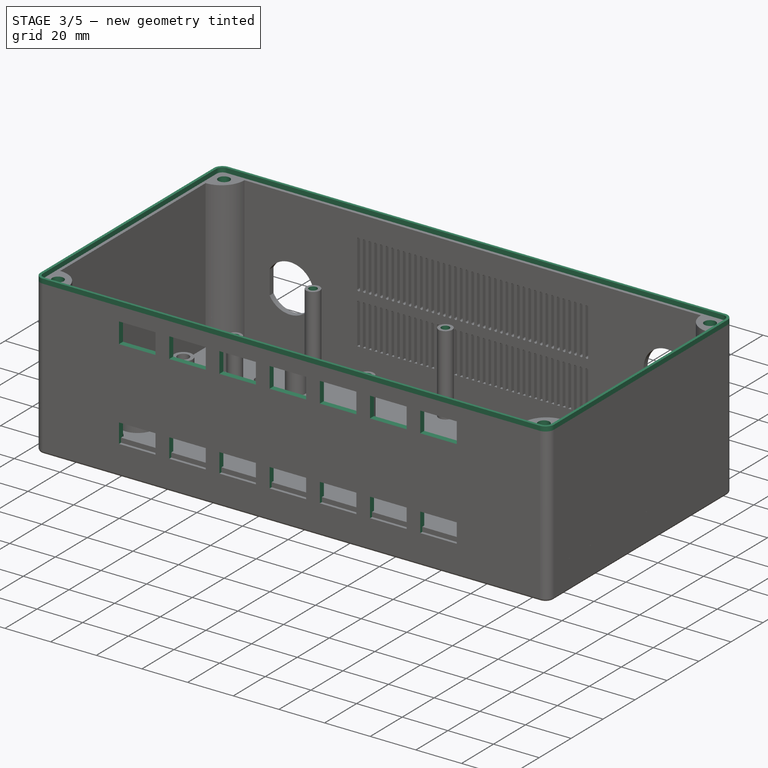
[diagram: stage 3 of 5 — iso view after this stage's code; geometry added in this stage tinted green]
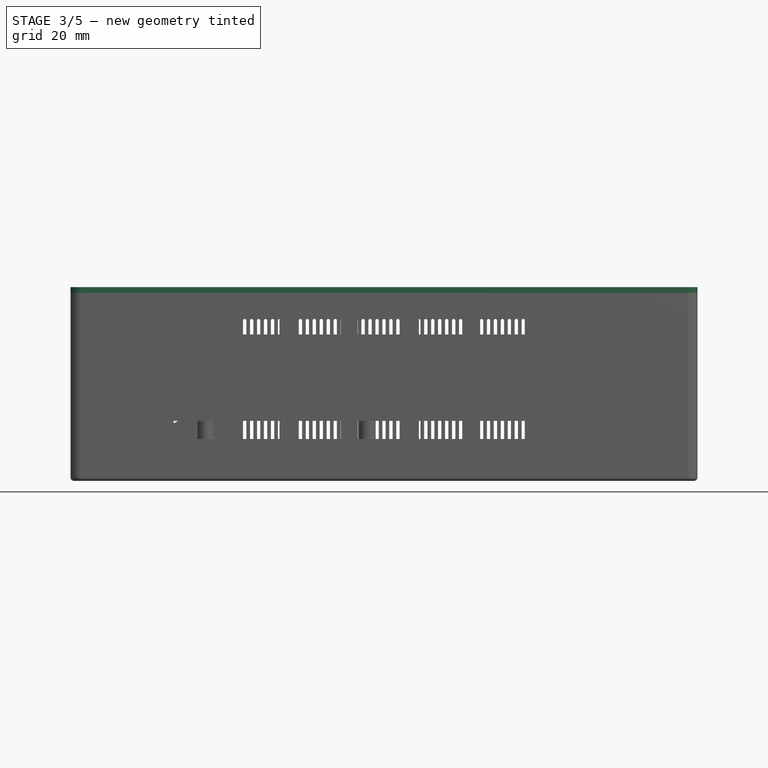
[diagram: stage 3 of 5 — front view after this stage's code; geometry added in this stage tinted green]
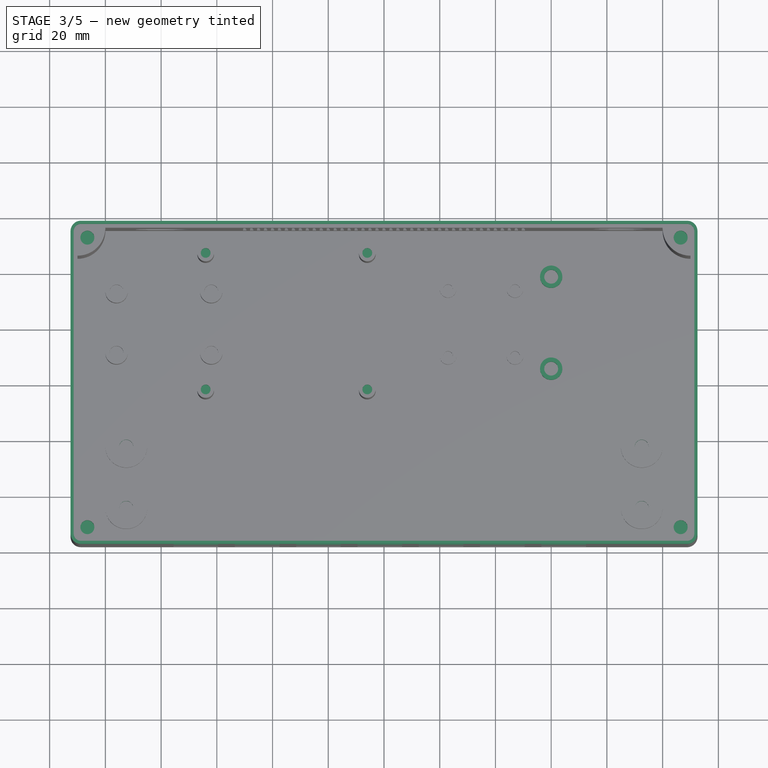
[diagram: stage 3 of 5 — top view after this stage's code; geometry added in this stage tinted green]
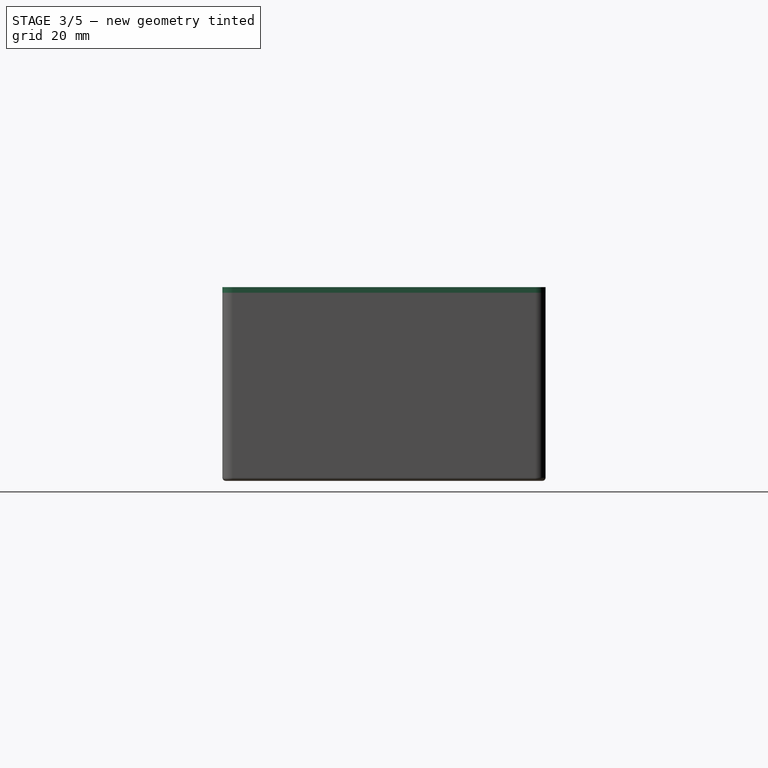
[diagram: stage 3 of 5 — right view after this stage's code; geometry added in this stage tinted green]
FEATURE [Sketcher::SketchObject] Sketch006  label="PiDrillSketch"
  FullyConstrained = true
  MapMode = 5
  Placement = pos=(0,0,37.5) rot=(0,0,1;0rad)
  Support = -> [LinearPattern]
  expr: Constraints[0] = Spreadsheet.PiMountholeDrill
  expr: Constraints[13] = Spreadsheet.PiMountholeCenterX
  expr: Constraints[5] = Spreadsheet.PiMountholeCenterY
  expr: Constraints[6] = Spreadsheet.PiMountholeXDistance
  expr: Constraints[7] = Spreadsheet.PiMountholeYDistance
  sketch-geometry (6):
    g0: Circle CenterX=-64 CenterY=47 CenterZ=0 NormalX=0 NormalY=0 NormalZ=1 AngleXU=0 Radius=1.75
    g1: Circle CenterX=-6 CenterY=47 CenterZ=0 NormalX=0 NormalY=0 NormalZ=1 AngleXU=0 Radius=1.75
    g2: Circle CenterX=-6 CenterY=-2 CenterZ=0 NormalX=0 NormalY=0 NormalZ=1 AngleXU=0 Radius=1.75
    g3: Circle CenterX=-64 CenterY=-2 CenterZ=0 NormalX=0 NormalY=0 NormalZ=1 AngleXU=0 Radius=1.75
    g4: GeomPoint X=-35 Y=22.5 Z=0
    g5: GeomPoint X=-35 Y=22.5 Z=0
  constraints (14):
    c: Diameter(g0) = 3.5
    c: Equal(g1,g0)
    c: Equal(g2,g0)
    c: Equal(g3,g0)
    c: Coincident(g5,g4)
    c: DistanceY(g-1,g4) = 22.5
    c: DistanceX(g0,g1) = 58
    c: DistanceY(g2,g1) = 49
    c: Vertical(g1,g2)
    c: Vertical(g0,g3)
    c: Horizontal(g1,g0)
    c: Horizontal(g2,g3)
    c: Symmetric(g1,g3,g4)
    c: DistanceX(g4,g-1) = 35
FEATURE [PartDesign::Pocket] Pocket003  label="PiDrillPocket"
  BaseFeature = -> LinearPattern
  Direction = (0,0,-1)
  Length = 5
  Length2 = 5
  Profile = -> Sketch006
  Type = 0
  expr: Length = Spreadsheet.PiMountholeHeight
FEATURE [Sketcher::SketchObject] Sketch007  label="HubDrillSketch"
  FullyConstrained = true
  MapMode = 5
  Placement = pos=(0,0,7.5) rot=(0,0,1;0rad)
  Support = -> [Pocket003]
  expr: Constraints[0] = Spreadsheet.HubMountholeDrill
  expr: Constraints[10] = Spreadsheet.HubMountholeXDistance
  expr: Constraints[11] = Spreadsheet.HubMountholeYDistance
  expr: Constraints[4] = Spreadsheet.HousingDepth / 2 - Spreadsheet.HubDepth / 2 + Spreadsheet.HubMountholeYDistance / 2
  expr: Constraints[5] = Spreadsheet.HubMountholeXDistance / 2
  sketch-geometry (4):
    g0: Circle CenterX=-92.5 CenterY=-22 CenterZ=0 NormalX=0 NormalY=0 NormalZ=1 AngleXU=0 Radius=2.5
    g1: Circle CenterX=-92.5 CenterY=-44 CenterZ=0 NormalX=0 NormalY=0 NormalZ=1 AngleXU=0 Radius=2.5
    g2: Circle CenterX=92.5 CenterY=-22 CenterZ=0 NormalX=0 NormalY=0 NormalZ=1 AngleXU=0 Radius=2.5
    g3: Circle CenterX=92.5 CenterY=-44 CenterZ=0 NormalX=0 NormalY=0 NormalZ=1 AngleXU=0 Radius=2.5
  constraints (12):
    c: Diameter(g0) = 5
    c: Equal(g1,g0)
    c: Equal(g2,g0)
    c: Equal(g3,g0)
    c: DistanceY(g1,g-1) = 44
    c: DistanceX(g1,g-1) = 92.5
    c: Vertical(g0,g1)
    c: Vertical(g2,g3)
    c: Horizontal(g3,g1)
    c: Horizontal(g2,g0)
    c: DistanceX(g1,g3) = 185
    c: DistanceY(g3,g2) = 22
FEATURE [PartDesign::Pocket] Pocket004  label="HubDrillPocket"
  BaseFeature = -> Pocket003
  Direction = (0,0,-1)
  Length = 5
  Length2 = 5
  Profile = -> Sketch007
  Type = 0
  expr: Length = Spreadsheet.HubMountHeight
FEATURE [Sketcher::SketchObject] Sketch008  label="HousingMountSketch"
  FullyConstrained = true
  MapMode = 5
  Placement = pos=(0,0,67.5) rot=(0,0,1;0rad)
  Support = -> [Pocket004]
  expr: Constraints[0] = Spreadsheet.HousingMountDrill
  expr: Constraints[4] = Spreadsheet.HousingWidth / 2 - Spreadsheet.HousingMountOffset
  expr: Constraints[5] = Spreadsheet.HousingDepth / 2 - Spreadsheet.HousingMountOffset
  sketch-geometry (4):
    g0: Circle CenterX=-106.464 CenterY=-51.9645 CenterZ=0 NormalX=0 NormalY=0 NormalZ=1 AngleXU=0 Radius=2.5
    g1: Circle CenterX=106.464 CenterY=-51.9645 CenterZ=0 NormalX=0 NormalY=0 NormalZ=1 AngleXU=0 Radius=2.5
    g2: Circle CenterX=106.464 CenterY=51.9645 CenterZ=0 NormalX=0 NormalY=0 NormalZ=1 AngleXU=0 Radius=2.5
    g3: Circle CenterX=-106.464 CenterY=51.9645 CenterZ=0 NormalX=0 NormalY=0 NormalZ=1 AngleXU=0 Radius=2.5
  constraints (11):
    c: Diameter(g0) = 5
    c: Equal(g1,g0)
    c: Equal(g2,g0)
    c: Equal(g3,g0)
    c: DistanceX(g0,g-1) = 106.464
    c: DistanceY(g0,g-1) = 51.9645
    c: Horizontal(g1,g0)
    c: Vertical(g3,g0)
    c: Horizontal(g2,g3)
    c: Vertical(g2,g1)
    c: Symmetric(g2,g0,g-1)
FEATURE [PartDesign::Pocket] Pocket005  label="HousingMountPocket"
  BaseFeature = -> Pocket004
  Direction = (0,0,-1)
  Length = 5
  Length2 = 100
  Profile = -> Sketch008
  Type = 0
  expr: Length = Spreadsheet.HousingMountHeight
FEATURE [Sketcher::SketchObject] Sketch009  label="UsbCutoutSketch"
  FullyConstrained = true
  MapMode = 5
  Placement = pos=(0,-58,0) rot=(1,0,0;1.5708rad)
  Support = -> [Pocket005]
  expr: Constraints[10] = Spreadsheet.UsbXOffset
  expr: Constraints[11] = Spreadsheet.WallThickness + Spreadsheet.UsbYOffset
  expr: Constraints[8] = Spreadsheet.UsbWidth
  expr: Constraints[9] = Spreadsheet.UsbHeight
  sketch-geometry (4):
    g0: LineSegment StartX=-75.5 StartY=21.5 StartZ=0 EndX=-59.5 EndY=21.5 EndZ=0
    g1: LineSegment StartX=-59.5 StartY=21.5 StartZ=0 EndX=-59.5 EndY=12.5 EndZ=0
    g2: LineSegment StartX=-59.5 StartY=12.5 StartZ=0 EndX=-75.5 EndY=12.5 EndZ=0
    g3: LineSegment StartX=-75.5 StartY=12.5 StartZ=0 EndX=-75.5 EndY=21.5 EndZ=0
  constraints (12):
    c: Coincident(g0,g1)
    c: Coincident(g1,g2)
    c: Coincident(g2,g3)
    c: Coincident(g3,g0)
    c: Horizontal(g0)
    c: Horizontal(g2)
    c: Vertical(g1)
    c: Vertical(g3)
    c: DistanceX(g0,g0) = 16
    c: DistanceY(g1,g1) = 9
    c: DistanceX(g2,g-1) = 75.5
    c: DistanceY(g-1,g2) = 12.5
FEATURE [PartDesign::Pocket] Pocket006  label="UsbCutoutPocket"
  BaseFeature = -> Pocket005
  Direction = (0,1,-2e-16)
  Length = 2.5
  Length2 = 100
  Profile = -> Sketch009
  Type = 0
  expr: Length = Spreadsheet.WallThickness
FEATURE [PartDesign::LinearPattern] LinearPattern001
  Direction = -> Sketch009 [H_Axis]
  Length = 132
  Occurrences = 7
  expr: Length = 6 * Spreadsheet.UsbXDistance
FEATURE [PartDesign::LinearPattern] LinearPattern002
  Direction = -> Sketch009 [V_Axis]
  Length = 40
  Occurrences = 2
  expr: Length = Spreadsheet.UsbYDistance
FEATURE [PartDesign::MultiTransform] MultiTransform  label="UsbCutoutMultiTransform"
  BaseFeature = -> Pocket006
  Originals = -> [Pocket006]
  Transformations = -> [LinearPattern001,LinearPattern002]
FEATURE [Sketcher::SketchObject] Sketch015  label="AuxMountSketch"
  FullyConstrained = true
  MapMode = 5
  Placement = pos=(0,0,2.5) rot=(0,0,1;0rad)
  Support = -> [MultiTransform]
  expr: Constraints[0] = Spreadsheet.AuxMountDiameter
  expr: Constraints[2] = Spreadsheet.AuxCenterY - Spreadsheet.AuxMountDistance / 2
  expr: Constraints[3] = Spreadsheet.AuxMountDistance
  expr: Constraints[5] = Spreadsheet.AuxCenterX
  sketch-geometry (2):
    g0: Circle CenterX=60 CenterY=6 CenterZ=0 NormalX=0 NormalY=0 NormalZ=1 AngleXU=0 Radius=4
    g1: Circle CenterX=60 CenterY=39 CenterZ=0 NormalX=0 NormalY=0 NormalZ=1 AngleXU=0 Radius=4
  constraints (6):
    c: Diameter(g0) = 8
    c: Equal(g1,g0)
    c: DistanceY(g-1,g0) = 6
    c: DistanceY(g0,g1) = 33
    c: Vertical(g1,g0)
    c: DistanceX(g-1,g0) = 60
FEATURE [PartDesign::Pad] Pad005  label="AuxMountPad"
  BaseFeature = -> MultiTransform
  Direction = (0,0,1)
  Length = 5
  Length2 = 10
  Profile = -> Sketch015
  ReferenceAxis = -> Sketch015 [N_Axis]
  Type = 0
  expr: Length = Spreadsheet.AuxMountHeight
FEATURE [Sketcher::SketchObject] Sketch016  label="AuxDrillSketch"
  FullyConstrained = true
  MapMode = 5
  Placement = pos=(0,0,7.5) rot=(0,0,1;0rad)
  Support = -> [Pad005]
  expr: Constraints[0] = Spreadsheet.AuxMountDrill
  expr: Constraints[2] = Spreadsheet.AuxCenterY - Spreadsheet.AuxMountDistance / 2
  expr: Constraints[4] = Spreadsheet.AuxMountDistance
  expr: Constraints[5] = Spreadsheet.AuxCenterX
  sketch-geometry (2):
    g0: Circle CenterX=60 CenterY=6 CenterZ=0 NormalX=0 NormalY=0 NormalZ=1 AngleXU=0 Radius=2.5
    g1: Circle CenterX=60 CenterY=39 CenterZ=0 NormalX=0 NormalY=0 NormalZ=1 AngleXU=0 Radius=2.5
  constraints (6):
    c: Diameter(g0) = 5
    c: Equal(g1,g0)
    c: DistanceY(g-1,g0) = 6
    c: Vertical(g1,g0)
    c: DistanceY(g0,g1) = 33
    c: DistanceX(g-1,g0) = 60
FEATURE [PartDesign::Pocket] Pocket010  label="AuxDrillPocket"
  BaseFeature = -> Pad005
  Direction = (0,0,-1)
  Length = 5
  Length2 = 5
  Profile = -> Sketch016
  ReferenceAxis = -> Sketch016 [N_Axis]
  Type = 0
  expr: Length = Spreadsheet.AuxMountHeight
FEATURE [PartDesign::Fillet] Fillet  label="HousingBottomFillet"
  Base = -> Pocket010 [Face4]
  BaseFeature = -> Pocket010
  Radius = 1.2
  SupportTransform = false
  UseAllEdges = false
  expr: Radius = Spreadsheet.HousingRoundingRadius
FEATURE [Sketcher::SketchObject] Sketch022  label="HousingBottomRailSketch"
  FullyConstrained = true
  MapMode = 5
  Placement = pos=(0,0,67.5) rot=(0,0,1;0rad)
  Support = -> [Fillet]
  expr: Constraints[12] = Spreadsheet.HousingRoundingRadius + Spreadsheet.WallThickness
  expr: Constraints[16] = Spreadsheet.HousingDepth + 2 * Spreadsheet.WallThickness
  expr: Constraints[17] = Spreadsheet.HousingWidth + 2 * Spreadsheet.WallThickness
  expr: Constraints[34] = Spreadsheet.HousingRoundingRadius + 0.55 * Spreadsheet.WallThickness
  sketch-geometry (16):
    g0: LineSegment StartX=-108.8 StartY=58 StartZ=0 EndX=108.8 EndY=58 EndZ=0
    g1: LineSegment StartX=112.5 StartY=54.3 StartZ=0 EndX=112.5 EndY=-54.3 EndZ=0
    g2: LineSegment StartX=108.8 StartY=-58 StartZ=0 EndX=-108.8 EndY=-58 EndZ=0
    g3: LineSegment StartX=-112.5 StartY=-54.3 StartZ=0 EndX=-112.5 EndY=54.3 EndZ=0
    g4: ArcOfCircle CenterX=-108.8 CenterY=54.3 CenterZ=0 NormalX=0 NormalY=0 NormalZ=1 AngleXU=0 Radius=3.7 StartAngle=1.5708 EndAngle=3.14159
    g5: ArcOfCircle CenterX=108.8 CenterY=54.3 CenterZ=0 NormalX=0 NormalY=0 NormalZ=1 AngleXU=0 Radius=3.7 StartAngle=-9e-16 EndAngle=1.5708
    g6: ArcOfCircle CenterX=108.8 CenterY=-54.3 CenterZ=0 NormalX=0 NormalY=0 NormalZ=1 AngleXU=0 Radius=3.7 StartAngle=4.71239 EndAngle=6.28319
    g7: ArcOfCircle CenterX=-108.8 CenterY=-54.3 CenterZ=0 NormalX=0 NormalY=0 NormalZ=1 AngleXU=0 Radius=3.7 StartAngle=3.14159 EndAngle=4.71239
    g8: LineSegment StartX=-108.8 StartY=56.875 StartZ=0 EndX=108.8 EndY=56.875 EndZ=0
    g9: LineSegment StartX=111.375 StartY=54.3 StartZ=0 EndX=111.375 EndY=-54.3 EndZ=0
    g10: LineSegment StartX=108.8 StartY=-56.875 StartZ=0 EndX=-108.8 EndY=-56.875 EndZ=0
    g11: LineSegment StartX=-111.375 StartY=-54.3 StartZ=0 EndX=-111.375 EndY=54.3 EndZ=0
    g12: ArcOfCircle CenterX=108.8 CenterY=-54.3 CenterZ=0 NormalX=0 NormalY=0 NormalZ=1 AngleXU=0 Radius=2.575 StartAngle=4.71239 EndAngle=6.28319
    g13: ArcOfCircle CenterX=108.8 CenterY=54.3 CenterZ=0 NormalX=0 NormalY=0 NormalZ=1 AngleXU=0 Radius=2.575 StartAngle=0 EndAngle=1.5708
    g14: ArcOfCircle CenterX=-108.8 CenterY=54.3 CenterZ=0 NormalX=0 NormalY=0 NormalZ=1 AngleXU=0 Radius=2.575 StartAngle=1.5708 EndAngle=3.14159
    g15: ArcOfCircle CenterX=-108.8 CenterY=-54.3 CenterZ=0 NormalX=0 NormalY=0 NormalZ=1 AngleXU=0 Radius=2.575 StartAngle=3.14159 EndAngle=4.71239
  constraints (35):
    c: Horizontal(g0)
    c: Horizontal(g2)
    c: Vertical(g1)
    c: Vertical(g3)
    c: Tangent(g0,g4) = 1.5708
    c: Tangent(g3,g4) = 1.5708
    c: Tangent(g0,g5) = 1.5708
    c: Tangent(g1,g5) = 1.5708
    c: Tangent(g1,g6) = 1.5708
    c: Tangent(g2,g6) = 1.5708
    c: Tangent(g2,g7) = 1.5708
    c: Tangent(g3,g7) = 1.5708
    c: Radius(g4) = 3.7
    c: Equal(g5,g4)
    c: Equal(g6,g4)
    c: Equal(g7,g4)
    c: DistanceY(g2,g0) = 116
    c: DistanceX(g3,g1) = 225
    c: Symmetric(g5,g7,g-1)
    c: Horizontal(g8)
    c: Horizontal(g10)
    c: Vertical(g9)
    c: Tangent(g9,g12) = 1.5708
    c: Tangent(g10,g12) = 1.5708
    c: Tangent(g8,g13) = 1.5708
    c: Tangent(g9,g13) = 1.5708
    c: Tangent(g8,g14) = 1.5708
    c: Tangent(g11,g14) = 1.5708
    c: Tangent(g10,g15) = 1.5708
    c: Tangent(g11,g15) = 1.5708
    c: Coincident(g14,g4)
    c: Coincident(g13,g5)
    c: Coincident(g12,g6)
    c: Coincident(g15,g7)
    c: Radius(g14) = 2.575
FEATURE [PartDesign::Pad] Pad009  label="HousingBottomRailPad"
  BaseFeature = -> Fillet
  Direction = (0,0,1)
  Length = 2
  Length2 = 10
  Profile = -> Sketch022
  ReferenceAxis = -> Sketch022 [N_Axis]
  Type = 0
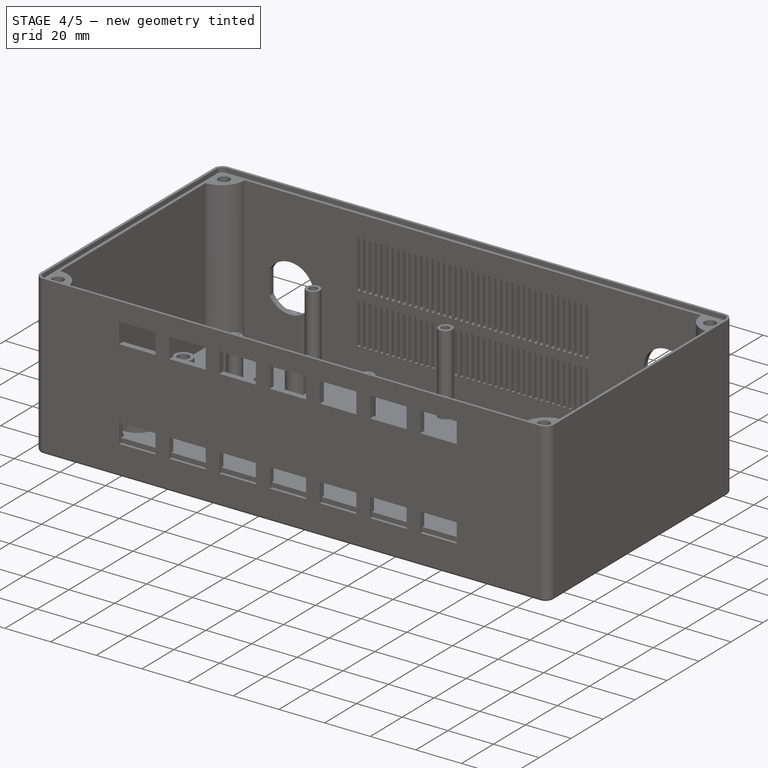
[diagram: stage 4 of 5 — iso view after this stage's code; geometry added in this stage tinted green]
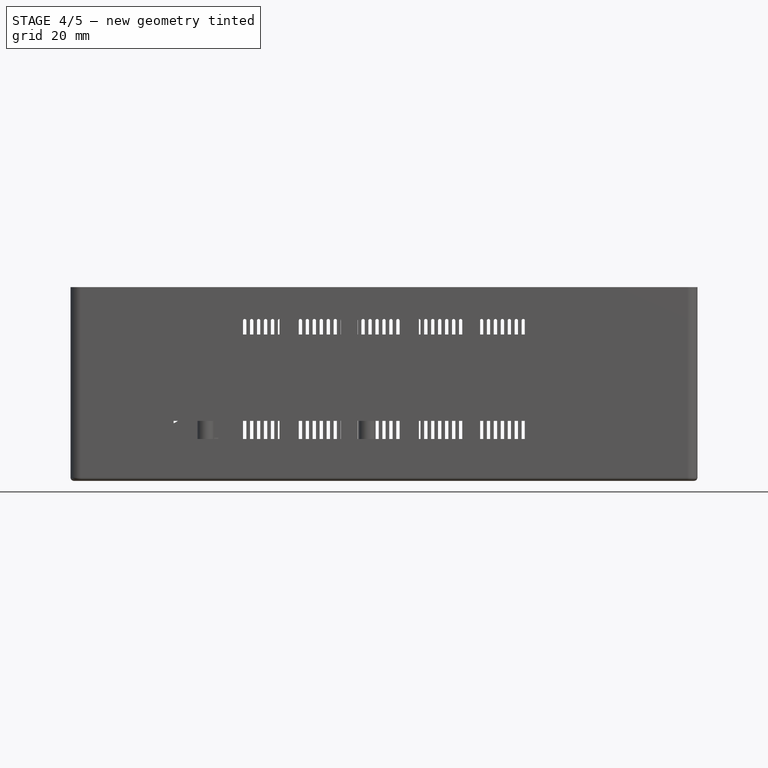
[diagram: stage 4 of 5 — front view after this stage's code; geometry added in this stage tinted green]
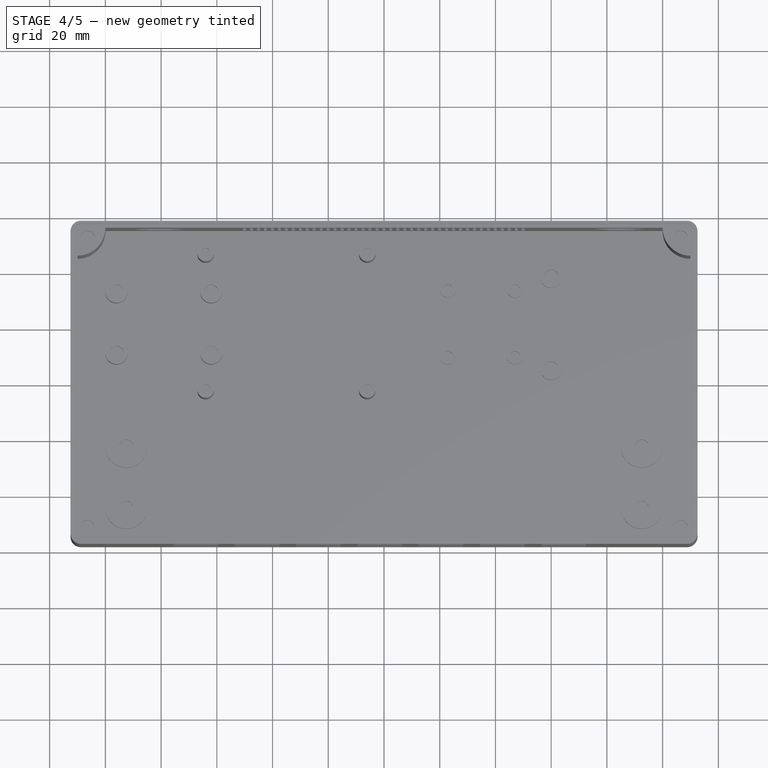
[diagram: stage 4 of 5 — top view after this stage's code; geometry added in this stage tinted green]
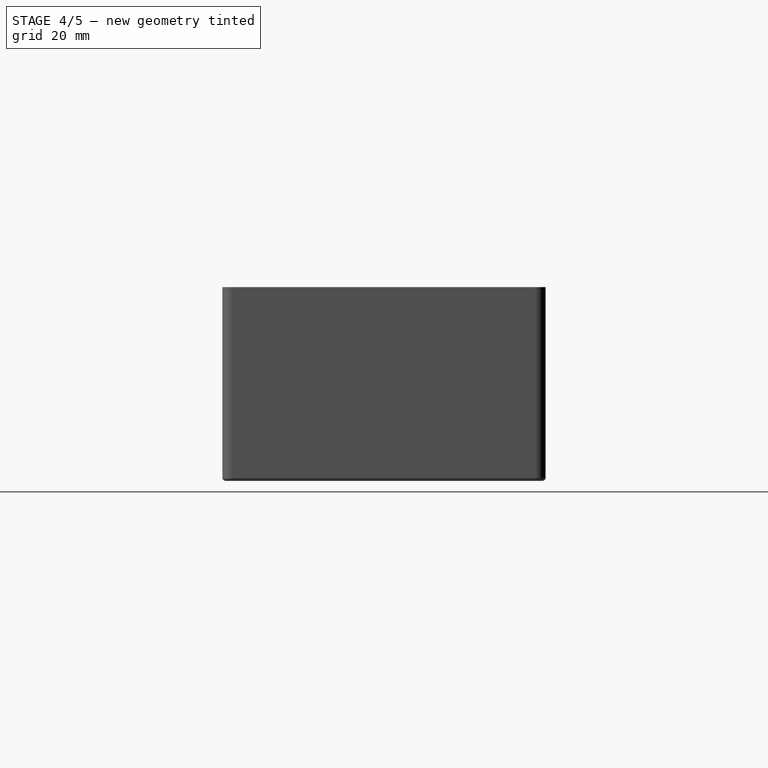
[diagram: stage 4 of 5 — right view after this stage's code; geometry added in this stage tinted green]
FEATURE [Sketcher::SketchObject] Sketch020
  FullyConstrained = true
  MapMode = 5
  Support = -> [XY_Plane002]
  sketch-geometry (1):
    g0: Circle CenterX=0 CenterY=0 CenterZ=0 NormalX=0 NormalY=0 NormalZ=1 AngleXU=0 Radius=3
  constraints (2):
    c: Coincident(g0,g-1)
    c: Diameter(g0) = 6
FEATURE [PartDesign::Pad] Pad007
  Direction = (0,0,1)
  Length = 3
  Length2 = 10
  Profile = -> Sketch020
  ReferenceAxis = -> Sketch020 [N_Axis]
  Type = 0
  expr: Length = 3
FEATURE [Sketcher::SketchObject] Sketch021
  FullyConstrained = true
  MapMode = 5
  Placement = pos=(0,0,3) rot=(0,0,1;0rad)
  Support = -> [Pad007]
  sketch-geometry (1):
    g0: Circle CenterX=0 CenterY=0 CenterZ=0 NormalX=0 NormalY=0 NormalZ=1 AngleXU=0 Radius=1.6
  constraints (2):
    c: Coincident(g0,g-1)
    c: Diameter(g0) = 3.2
FEATURE [PartDesign::Pad] Pad008
  BaseFeature = -> Pad007
  Direction = (0,0,1)
  Length = 15
  Length2 = 10
  Profile = -> Sketch021
  ReferenceAxis = -> Sketch021 [N_Axis]
  Type = 0
  expr: Length = Spreadsheet.HousingTopHeight
FEATURE [PartDesign::Body] Body002  label="ScrewBody"
  Group = -> [Sketch020,Pad007,Sketch021,Pad008]
  Origin = -> Origin002
  Placement = pos=(-106.464,-51.9645,0) rot=(0,0,1;0rad)
  Tip = -> Pad008
  expr: .Placement.Base.x = -Spreadsheet.HousingWidth / 2 + Spreadsheet.HousingMountOffset
  expr: .Placement.Base.y = -Spreadsheet.HousingDepth / 2 + Spreadsheet.HousingMountOffset
FEATURE [Part::FeaturePython] Array  label="ScrewArray"  # Draft array (typed FeaturePython)
  AlwaysSyncPlacement = false
  Angle = 360
  ArrayType = 0
  Axis = (0,0,1)
  Base = -> Body002
  Center = (0,0,0)
  Count = 4
  ExpandArray = false
  Fuse = false
  IntervalAxis = (0,0,0)
  IntervalX = (212.929,0,0)
  IntervalY = (0,103.929,0)
  IntervalZ = (0,0,100)
  NumberCircles = 3
  NumberPolar = 5
  NumberX = 2
  NumberY = 2
  NumberZ = 1
  PlacementList = 4 placements: [(-106.464,-51.9645,0),(-106.464,51.9645,0),(106.464,-51.9645,0),(106.464,51.9645,0)]
  RadialDistance = 50
  ScaleList = (4) [(1,1,1),(1,1,1),(1,1,1),(1,1,1)]
  Symmetry = 1
  TangentialDistance = 25
  expr: .IntervalX.x = Spreadsheet.HousingWidth - 2 * Spreadsheet.HousingMountOffset
  expr: .IntervalY.y = Spreadsheet.HousingDepth - 2 * Spreadsheet.HousingMountOffset
FEATURE [Part::Extrusion] Extrude011
  Base = -> path866001
  Dir = (0,0,1)
  DirMode = 0
  FaceMakerClass = Part::FaceMakerBullseye
  LengthFwd = 0.5
  LengthRev = 0
  Solid = false
  Symmetric = false
FEATURE [Part::Extrusion] Extrude012
  Base = -> path866002
  Dir = (0,0,1)
  DirMode = 0
  FaceMakerClass = Part::FaceMakerBullseye
  LengthFwd = 0.5
  LengthRev = 0
  Solid = false
  Symmetric = false
FEATURE [Part::Feature] path1325
  shape: bbox 34.57 x 23.9 x 2e-07 mm, 1 faces, 0 solids (baked)
FEATURE [Part::Feature] path1325001
  shape: bbox 4.801 x 4.781 x 2e-07 mm, 1 faces, 0 solids (baked)
FEATURE [Part::Extrusion] Extrude013
  Base = -> path1325
  Dir = (0,0,1)
  DirMode = 0
  FaceMakerClass = Part::FaceMakerBullseye
  LengthFwd = 0.5
  LengthRev = 0
  Solid = false
  Symmetric = false
FEATURE [Part::Extrusion] Extrude014
  Base = -> path1325001
  Dir = (0,0,1)
  DirMode = 0
  FaceMakerClass = Part::FaceMakerBullseye
  LengthFwd = 0.5
  LengthRev = 0
  Placement = pos=(0,0.4,0) rot=(0,0,1;0rad)
  Solid = false
  Symmetric = false
FEATURE [Part::MultiFuse] Fusion007  label="ISF"
  Placement = pos=(-25,-14,0) rot=(0,0,1;0rad)
  Shapes = -> [Extrude013,Extrude014]
FEATURE [PartDesign::Body] Body001  label="TopBody"
  Group = -> [Sketch010,Pad003,Sketch011,Pocket007,Sketch012,Pad004,Sketch013,Pocket008,Sketch014,Pocket009,LinearPattern003,Sketch017,Pad006,Sketch018,Pocket011,Sketch019,Pocket012,Fillet001,Sketch023,Pocket013]
  Origin = -> Origin001
  Tip = -> Pocket013
FEATURE [Part::Cut] Cut001  label="TopScrewsCut"
  Base = -> Body001
  Tool = -> Array
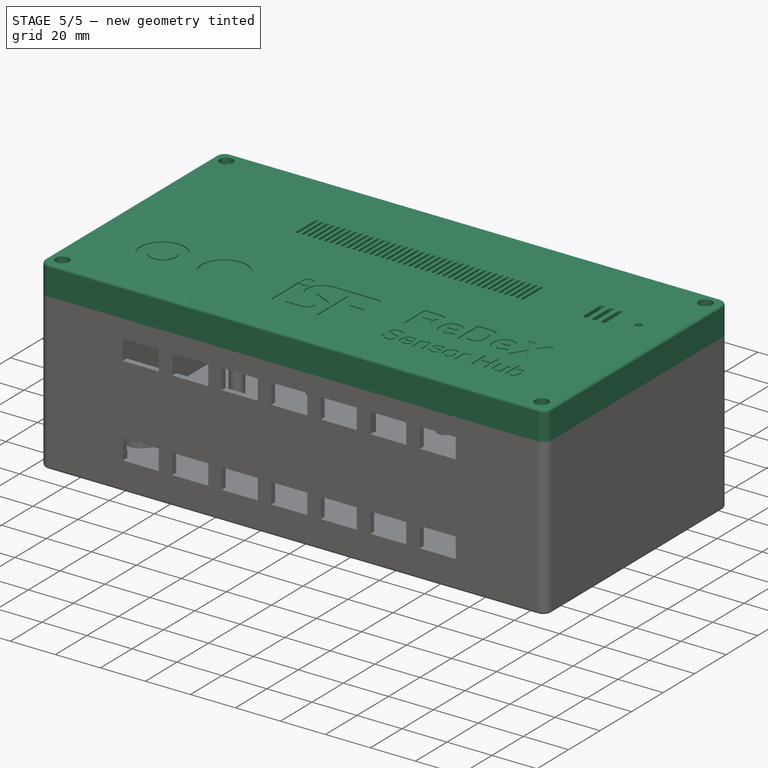
[diagram: stage 5 of 5 — iso view after this stage's code; geometry added in this stage tinted green]
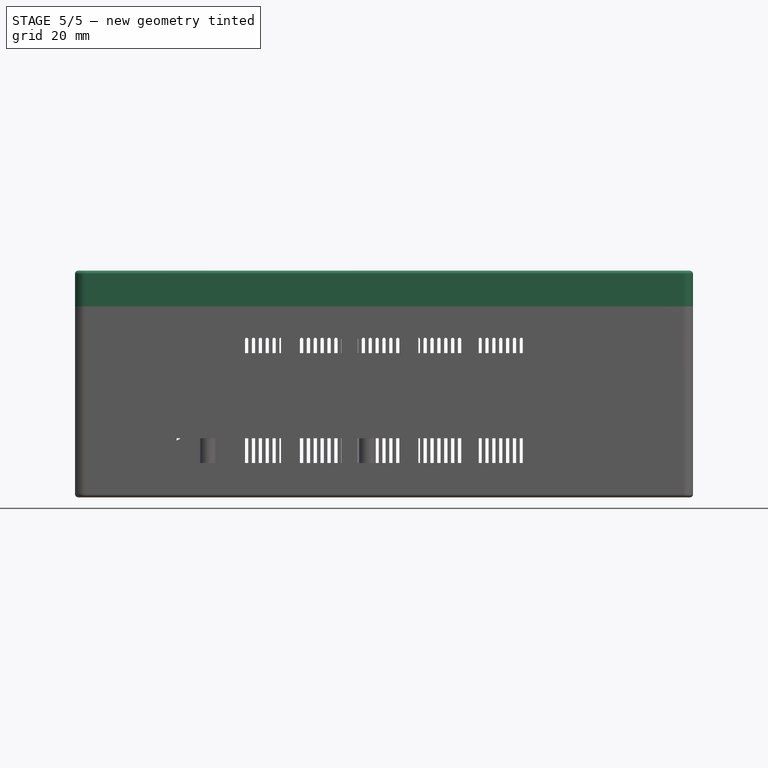
[diagram: stage 5 of 5 — front view after this stage's code; geometry added in this stage tinted green]
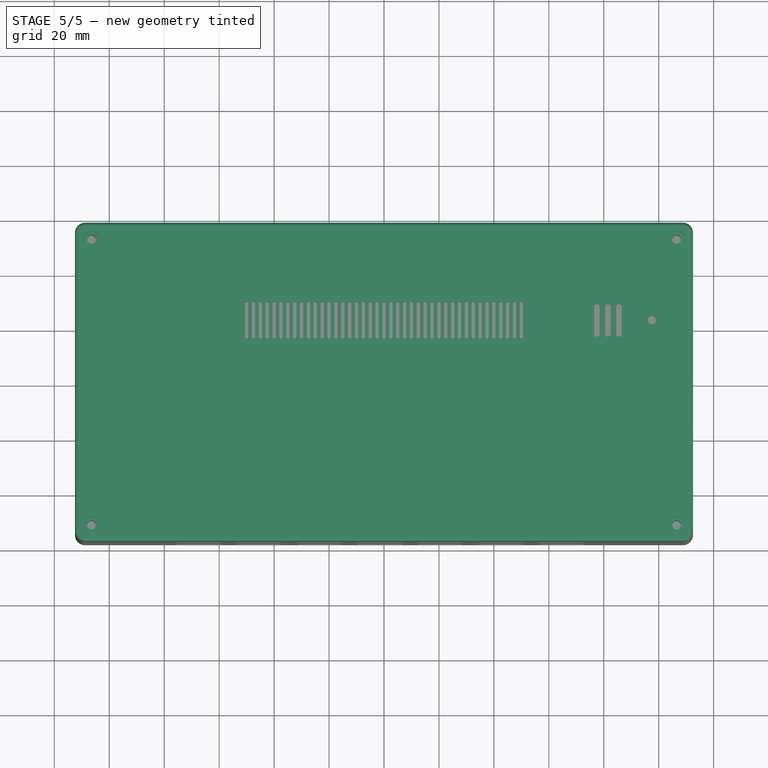
[diagram: stage 5 of 5 — top view after this stage's code; geometry added in this stage tinted green]
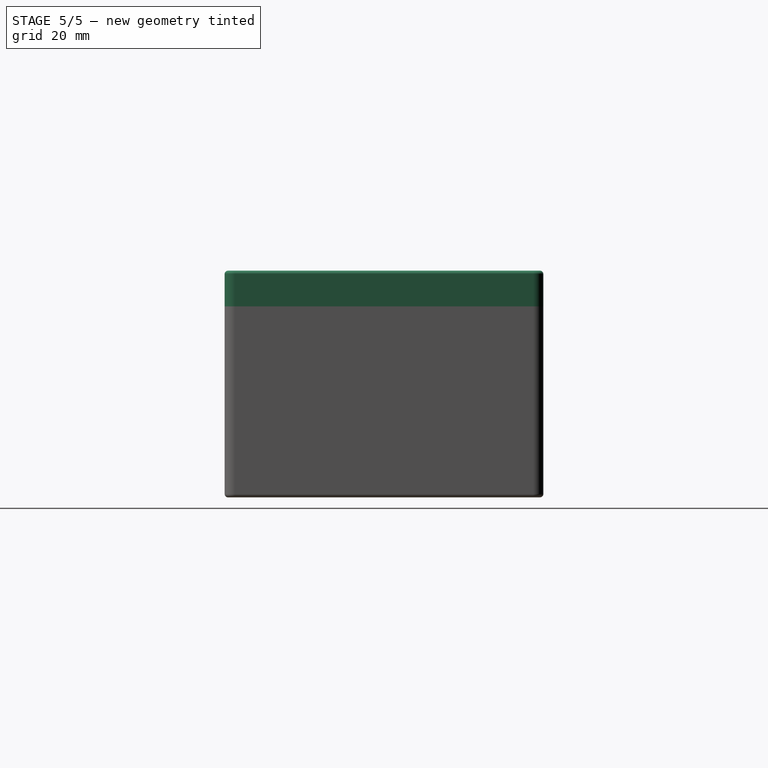
[diagram: stage 5 of 5 — right view after this stage's code; geometry added in this stage tinted green]
FEATURE [Part::Part2DObjectPython] ShapeString004  # Draft 2D object (typed FeaturePython)
  FontFile = <path>
  MakeFace = true
  Placement = pos=(25,-25,0) rot=(0,0,1;0rad)
  Size = 14
  String = ReDeX
  Tracking = 0
FEATURE [Part::Part2DObjectPython] ShapeString005  # Draft 2D object (typed FeaturePython)
  FontFile = <path>
  MakeFace = true
  Placement = pos=(25,-40,0) rot=(0,0,1;0rad)
  Size = 9
  String = Sensor Hub
  Tracking = 0
FEATURE [Part::Extrusion] Extrude009
  Base = -> ShapeString004
  Dir = (0,0,1)
  DirMode = 0
  FaceMakerClass = Part::FaceMakerBullseye
  LengthFwd = 0.5
  LengthRev = 0
  Solid = false
  Symmetric = false
FEATURE [Part::Extrusion] Extrude010
  Base = -> ShapeString005
  Dir = (0,0,1)
  DirMode = 0
  FaceMakerClass = Part::FaceMakerBullseye
  LengthFwd = 0.5
  LengthRev = 0
  Solid = false
  Symmetric = false
FEATURE [Part::MultiFuse] Fusion006  label="ReDeX"
  Shapes = -> [Extrude010,Extrude009]
FEATURE [Part::Feature] path866
  shape: bbox 20.34 x 20.1 x 2e-07 mm, 1 faces, 0 solids (baked)
FEATURE [Part::Feature] path866001
  shape: bbox 19.8 x 19.86 x 2e-07 mm, 1 faces, 0 solids (baked)
FEATURE [Part::Feature] path866002
  shape: bbox 11.94 x 11.74 x 2e-07 mm, 1 faces, 0 solids (baked)
FEATURE [Part::Extrusion] Extrude
  Base = -> path866
  Dir = (0,0,1)
  DirMode = 0
  FaceMakerClass = Part::FaceMakerBullseye
  LengthFwd = 0.5
  LengthRev = 0
  Solid = false
  Symmetric = false
FEATURE [Part::Cut] Cut
  Base = -> Extrude011
  Tool = -> Extrude012
FEATURE [Part::MultiFuse] Fusion  label="H-BRS"
  Placement = pos=(-90,-16,0) rot=(0,0,1;0rad)
  Shapes = -> [Extrude,Cut]
FEATURE [Part::MultiFuse] Fusion008  label="Engravings"
  Shapes = -> [Fusion006,Fusion,Fusion007]
FEATURE [Part::Mirroring] Part__Mirroring  label="Engravings (Mirror #1)"
  Base = (0,0,0)
  Normal = (1,0,0)
  Source = -> Fusion008
FEATURE [Part::Cut] Cut002  label="TopEngravingsCut"
  Base = -> Cut001
  Placement = pos=(0,0,82.5) rot=(0,1,0;3.14159rad)
  Tool = -> Part__Mirroring
note: 2 file-system paths scrubbed to <path> (originals preserved in the JSON sidecar)
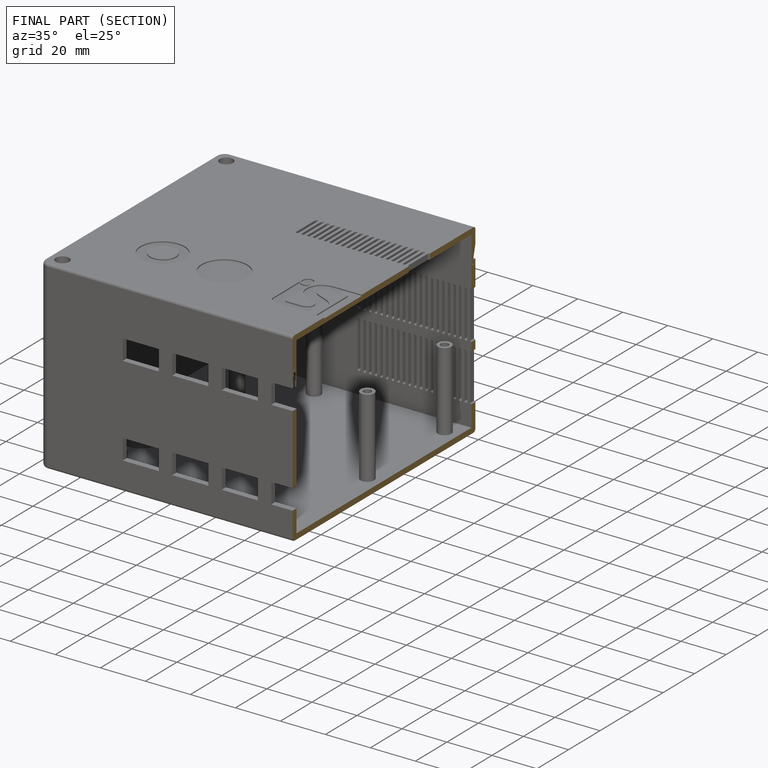
[diagram: finished part — half-section view (interior)]
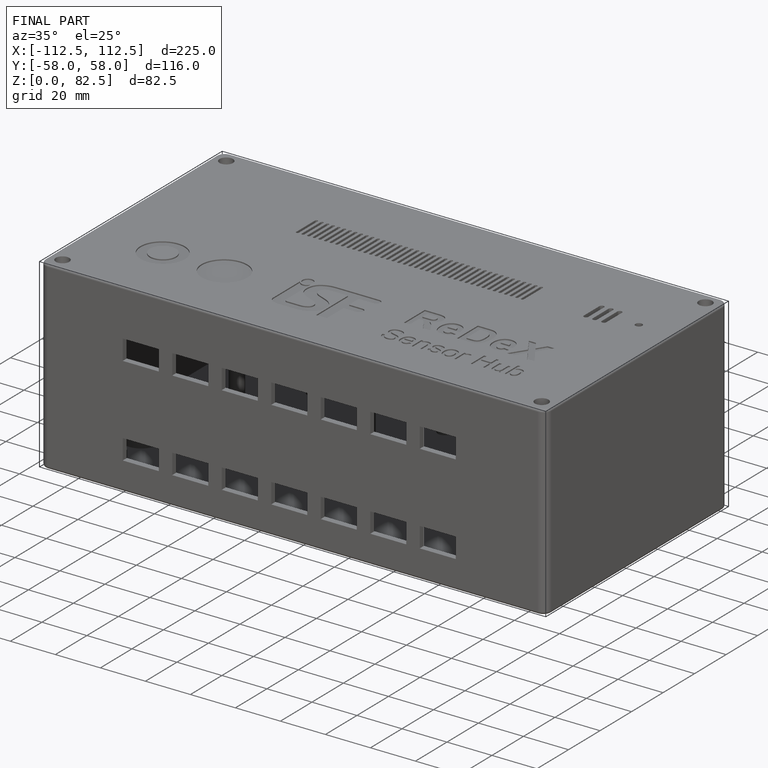
[diagram: finished part — iso view with bounding-box wireframe]
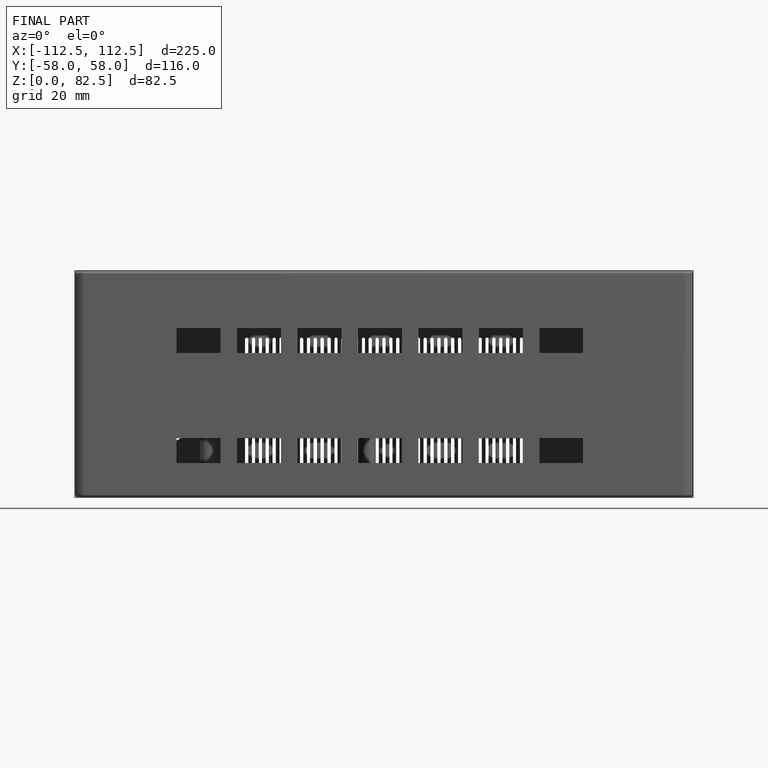
[diagram: finished part — front view with bounding-box wireframe]
